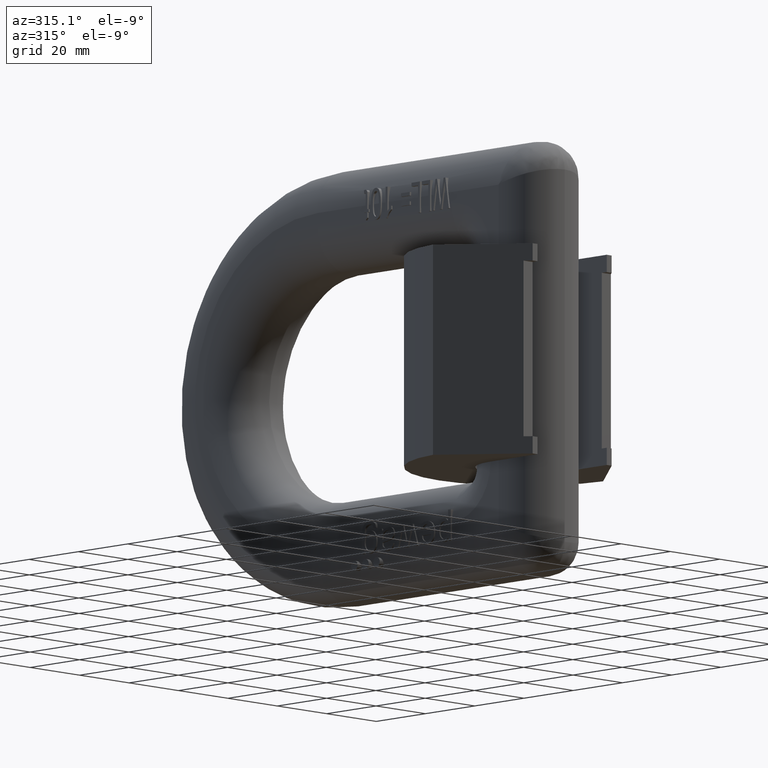
[diagram: clean part render]
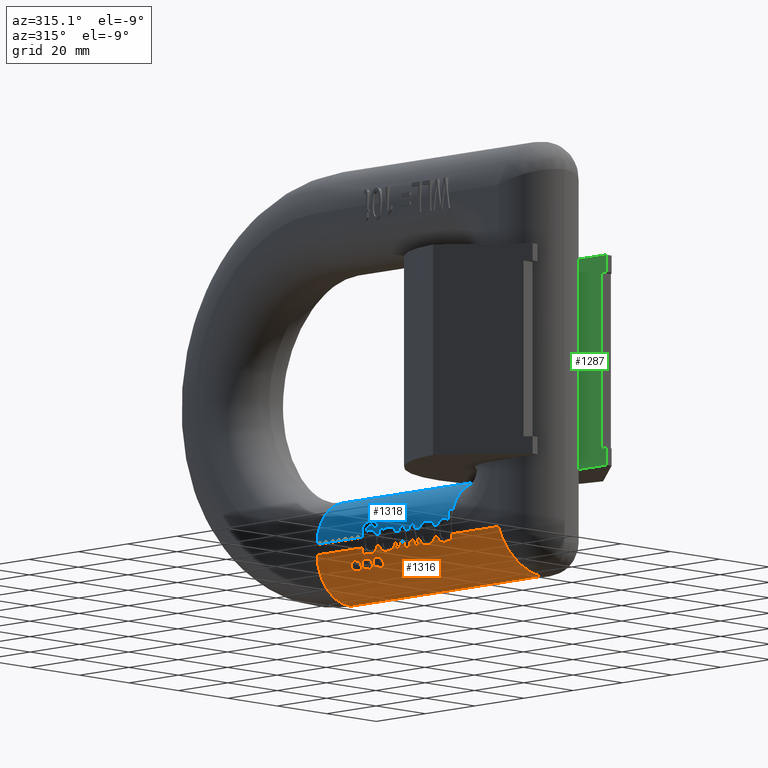
[diagram: same view with three faces highlighted in distinct colors, each labeled with its STEP entity id]
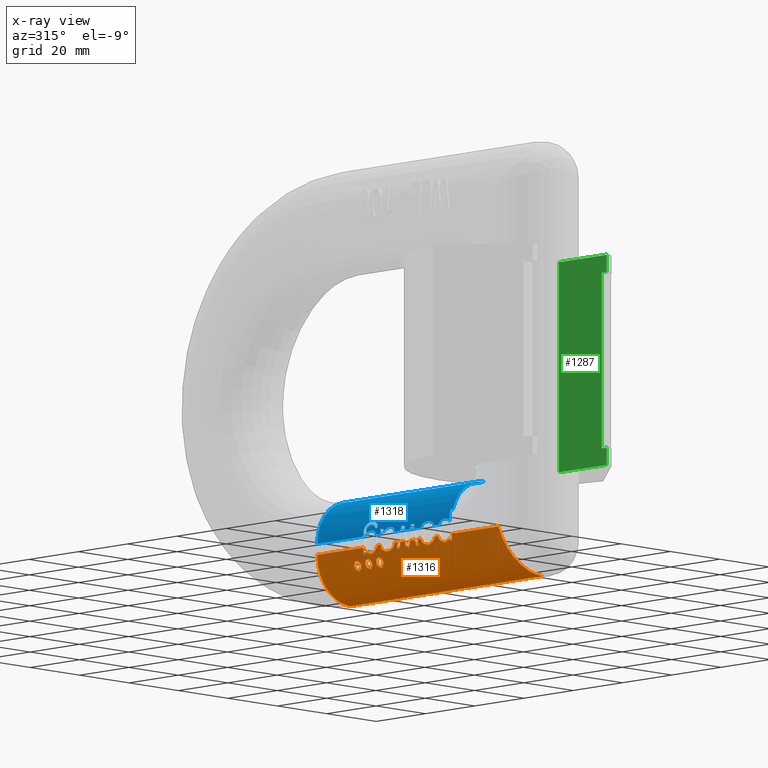
[diagram: x-ray of the same camera — body ghosted, the three highlighted faces saturated]
A machine part, auxiliary view with three faces highlighted in distinct colors.
The next image is the same camera in x-ray (body ghosted, the three faces saturated) — at least one of them is partly hidden behind the body in this view.
Their STEP definitions:

[orange] entity #1316 — the highlighted cylindrical surface (partial cylindrical patch) has radius 13.4 mm, axis along (0, 1, -0).
#189=FACE_BOUND('',#2283,.T.);
#190=FACE_BOUND('',#2284,.T.);
#191=FACE_BOUND('',#2285,.T.);
#192=FACE_BOUND('',#2286,.T.);
#243=ELLIPSE('',#8992,14.0350796678236,13.4);
#244=ELLIPSE('',#8993,13.9031873337703,13.4);
#245=ELLIPSE('',#8994,13.854260445245,13.4);
#246=ELLIPSE('',#8995,14.0610965726441,13.4);
#247=ELLIPSE('',#8996,100.810367503954,13.4);
#248=ELLIPSE('',#8999,14.1039001698112,13.4);
#317=B_SPLINE_CURVE_WITH_KNOTS('',3,(#11532,#11533,#11534,#11535,#11536,
#11537,#11538,#11539,#11540,#11541,#11542,#11543,#11544,#11545,#11546,#11547,
#11548,#11549,#11550,#11551,#11552,#11553,#11554,#11555,#11556,#11557,#11558,
#11559,#11560,#11561,#11562,#11563,#11564,#11565,#11566,#11567,#11568,#11569,
#11570,#11571,#11572,#11573,#11574,#11575,#11576,#11577,#11578,#11579,#11580,
#11581,#11582,#11583,#11584,#11585,#11586,#11587,#11588,#11589),
 .UNSPECIFIED.,.T.,.F.,(1,3,3,3,3,3,3,3,3,3,3,3,3,3,3,3,3,3,3,3,3,1),(-0.0292036165725139,
0.,0.0476978681853334,0.0952270635240324,0.145233448929908,0.200580814912016,
0.260047786898462,0.320052677696436,0.377361162453837,0.431248667078267,
0.482705602310524,0.532938277554495,0.582861336750587,0.633240313017631,
0.684934455586645,0.738946362343827,0.796051499778295,0.855850055386795,
0.915583581463539,0.970796383427486,1.,1.04769786818533),.UNSPECIFIED.);
#318=B_SPLINE_CURVE_WITH_KNOTS('',3,(#11597,#11598,#11599,#11600,#11601,
#11602,#11603,#11604,#11605,#11606),.UNSPECIFIED.,.F.,.F.,(4,3,3,4),(0.,
0.275243159320827,0.550245612807324,1.),.UNSPECIFIED.);
#319=B_SPLINE_CURVE_WITH_KNOTS('',3,(#11608,#11609,#11610,#11611,#11612,
#11613,#11614,#11615,#11616,#11617,#11618,#11619,#11620),.UNSPECIFIED.,
 .F.,.F.,(4,3,3,3,4),(0.,0.322317485495754,0.642802554380416,0.909798032915893,
1.),.UNSPECIFIED.);
#320=B_SPLINE_CURVE_WITH_KNOTS('',3,(#11622,#11623,#11624,#11625,#11626,
#11627,#11628),.UNSPECIFIED.,.F.,.F.,(4,3,4),(0.,0.521516848252663,1.),
 .UNSPECIFIED.);
#321=B_SPLINE_CURVE_WITH_KNOTS('',3,(#11632,#11633,#11634,#11635,#11636,
#11637,#11638,#11639,#11640,#11641,#11642,#11643,#11644,#11645,#11646,#11647,
#11648,#11649,#11650,#11651,#11652,#11653,#11654,#11655,#11656),
 .UNSPECIFIED.,.F.,.F.,(4,3,3,3,3,3,3,3,4),(0.,0.128807484067719,0.258123023312419,
0.383049313095489,0.531872449223691,0.684893812110349,0.822575973196024,
0.949143962446189,1.),.UNSPECIFIED.);
#322=B_SPLINE_CURVE_WITH_KNOTS('',3,(#11664,#11665,#11666,#11667),
 .UNSPECIFIED.,.F.,.F.,(4,4),(0.,1.),.UNSPECIFIED.);
#323=B_SPLINE_CURVE_WITH_KNOTS('',3,(#11679,#11680,#11681,#11682),
 .UNSPECIFIED.,.F.,.F.,(4,4),(0.,1.),.UNSPECIFIED.);
#324=B_SPLINE_CURVE_WITH_KNOTS('',3,(#11692,#11693,#11694,#11695,#11696,
#11697,#11698,#11699,#11700,#11701),.UNSPECIFIED.,.F.,.F.,(4,3,3,4),(0.,
0.288985481224049,0.577299160498725,1.),.UNSPECIFIED.);
#325=B_SPLINE_CURVE_WITH_KNOTS('',3,(#11703,#11704,#11705,#11706,#11707,
#11708,#11709,#11710,#11711,#11712),.UNSPECIFIED.,.F.,.F.,(4,3,3,4),(0.,
0.285250202288031,0.570998771076846,1.),.UNSPECIFIED.);
#326=B_SPLINE_CURVE_WITH_KNOTS('',3,(#11714,#11715,#11716,#11717,#11718,
#11719,#11720,#11721,#11722,#11723),.UNSPECIFIED.,.F.,.F.,(4,3,3,4),(0.,
0.294604659840551,0.585608039204922,1.),.UNSPECIFIED.);
#327=B_SPLINE_CURVE_WITH_KNOTS('',3,(#11725,#11726,#11727,#11728,#11729,
#11730,#11731,#11732,#11733,#11734),.UNSPECIFIED.,.F.,.F.,(4,3,3,4),(0.,
0.305786493893867,0.609747926784091,1.),.UNSPECIFIED.);
#328=B_SPLINE_CURVE_WITH_KNOTS('',3,(#11736,#11737,#11738,#11739,#11740,
#11741,#11742,#11743,#11744,#11745),.UNSPECIFIED.,.F.,.F.,(4,3,3,4),(0.,
0.277738064993001,0.555749789598673,1.),.UNSPECIFIED.);
#329=B_SPLINE_CURVE_WITH_KNOTS('',3,(#11747,#11748,#11749,#11750),
 .UNSPECIFIED.,.F.,.F.,(4,4),(0.,1.),.UNSPECIFIED.);
#330=B_SPLINE_CURVE_WITH_KNOTS('',3,(#11754,#11755,#11756,#11757),
 .UNSPECIFIED.,.F.,.F.,(4,4),(0.,1.),.UNSPECIFIED.);
#331=B_SPLINE_CURVE_WITH_KNOTS('',3,(#11759,#11760,#11761,#11762,#11763,
#11764,#11765,#11766,#11767,#11768,#11769,#11770,#11771,#11772,#11773,#11774,
#11775,#11776,#11777),.UNSPECIFIED.,.F.,.F.,(4,3,3,3,3,3,4),(0.,0.158588813182295,
0.318848548936535,0.495282039811354,0.674812629394193,0.83877153052638,
1.),.UNSPECIFIED.);
#332=B_SPLINE_CURVE_WITH_KNOTS('',3,(#11783,#11784,#11785,#11786),
 .UNSPECIFIED.,.F.,.F.,(4,4),(0.,1.),.UNSPECIFIED.);
#333=B_SPLINE_CURVE_WITH_KNOTS('',3,(#11789,#11790,#11791,#11792,#11793,
#11794,#11795,#11796,#11797,#11798,#11799,#11800,#11801,#11802,#11803,#11804,
#11805,#11806,#11807,#11808,#11809,#11810,#11811,#11812,#11813,#11814,#11815,
#11816,#11817,#11818,#11819,#11820,#11821,#11822,#11823,#11824,#11825,#11826,
#11827,#11828,#11829,#11830,#11831,#11832,#11833,#11834,#11835,#11836,#11837,
#11838,#11839,#11840,#11841,#11842,#11843,#11844,#11845,#11846),
 .UNSPECIFIED.,.T.,.F.,(1,3,3,3,3,3,3,3,3,3,3,3,3,3,3,3,3,3,3,3,3,1),(-0.0292036165725141,
0.,0.0476978681853334,0.0952270635240323,0.145233448929908,0.200580814912016,
0.260047786898462,0.320052677696437,0.377361162453837,0.431248667078268,
0.482705602310524,0.532938277554495,0.582861336750587,0.633240313017631,
0.684934455586645,0.738946362343826,0.796051499778294,0.855850055386796,
0.915583581463539,0.970796383427486,1.,1.04769786818533),.UNSPECIFIED.);
#334=B_SPLINE_CURVE_WITH_KNOTS('',3,(#11848,#11849,#11850,#11851,#11852,
#11853,#11854,#11855,#11856,#11857,#11858,#11859,#11860,#11861,#11862,#11863,
#11864,#11865,#11866,#11867,#11868,#11869,#11870,#11871,#11872,#11873,#11874,
#11875,#11876,#11877,#11878,#11879,#11880,#11881,#11882,#11883,#11884,#11885,
#11886,#11887,#11888,#11889,#11890,#11891,#11892,#11893,#11894,#11895,#11896,
#11897,#11898,#11899,#11900,#11901,#11902,#11903,#11904,#11905),
 .UNSPECIFIED.,.T.,.F.,(1,3,3,3,3,3,3,3,3,3,3,3,3,3,3,3,3,3,3,3,3,1),(-0.0292036165725141,
0.,0.0476978681853334,0.0952270635240323,0.145233448929908,0.200580814912016,
0.260047786898462,0.320052677696437,0.377361162453837,0.431248667078268,
0.482705602310524,0.532938277554494,0.582861336750587,0.633240313017631,
0.684934455586645,0.738946362343826,0.796051499778294,0.855850055386796,
0.915583581463539,0.970796383427486,1.,1.04769786818533),.UNSPECIFIED.);
#1316=ADVANCED_FACE('',(#189,#190,#191,#192),#1750,.T.);
#1750=CYLINDRICAL_SURFACE('',#9000,13.4);
#2283=EDGE_LOOP('',(#3078));
#2284=EDGE_LOOP('',(#3079,#3080,#3081,#3082,#3083,#3084,#3085,#3086,#3087,
#3088,#3089,#3090,#3091,#3092,#3093,#3094,#3095,#3096,#3097,#3098,#3099,
#3100,#3101,#3102,#3103,#3104,#3105,#3106,#3107,#3108,#3109,#3110,#3111,
#3112,#3113,#3114,#3115,#3116,#3117));
#2285=EDGE_LOOP('',(#3118));
#2286=EDGE_LOOP('',(#3119));
#2759=CIRCLE('',#8990,13.4);
#2760=CIRCLE('',#8991,13.4);
#2761=CIRCLE('',#8997,13.4);
#2762=CIRCLE('',#8998,13.4);
#3078=ORIENTED_EDGE('',*,*,#6461,.T.);
#3079=ORIENTED_EDGE('',*,*,#6462,.F.);
#3080=ORIENTED_EDGE('',*,*,#6463,.F.);
#3081=ORIENTED_EDGE('',*,*,#6464,.F.);
#3082=ORIENTED_EDGE('',*,*,#6465,.F.);
#3083=ORIENTED_EDGE('',*,*,#6466,.F.);
#3084=ORIENTED_EDGE('',*,*,#6467,.F.);
#3085=ORIENTED_EDGE('',*,*,#6468,.F.);
#3086=ORIENTED_EDGE('',*,*,#6469,.F.);
#3087=ORIENTED_EDGE('',*,*,#6470,.F.);
#3088=ORIENTED_EDGE('',*,*,#6471,.F.);
#3089=ORIENTED_EDGE('',*,*,#6472,.F.);
#3090=ORIENTED_EDGE('',*,*,#6473,.F.);
#3091=ORIENTED_EDGE('',*,*,#6474,.F.);
#3092=ORIENTED_EDGE('',*,*,#6475,.F.);
#3093=ORIENTED_EDGE('',*,*,#6476,.F.);
#3094=ORIENTED_EDGE('',*,*,#6477,.F.);
#3095=ORIENTED_EDGE('',*,*,#6478,.F.);
#3096=ORIENTED_EDGE('',*,*,#6479,.F.);
#3097=ORIENTED_EDGE('',*,*,#6480,.F.);
#3098=ORIENTED_EDGE('',*,*,#6481,.F.);
#3099=ORIENTED_EDGE('',*,*,#6482,.F.);
#3100=ORIENTED_EDGE('',*,*,#6483,.F.);
#3101=ORIENTED_EDGE('',*,*,#6484,.F.);
#3102=ORIENTED_EDGE('',*,*,#6485,.F.);
#3103=ORIENTED_EDGE('',*,*,#6486,.F.);
#3104=ORIENTED_EDGE('',*,*,#6487,.F.);
#3105=ORIENTED_EDGE('',*,*,#6488,.F.);
#3106=ORIENTED_EDGE('',*,*,#6489,.F.);
#3107=ORIENTED_EDGE('',*,*,#6490,.F.);
#3108=ORIENTED_EDGE('',*,*,#6491,.F.);
#3109=ORIENTED_EDGE('',*,*,#6492,.F.);
#3110=ORIENTED_EDGE('',*,*,#6493,.F.);
#3111=ORIENTED_EDGE('',*,*,#6494,.F.);
#3112=ORIENTED_EDGE('',*,*,#6495,.F.);
#3113=ORIENTED_EDGE('',*,*,#6455,.F.);
#3114=ORIENTED_EDGE('',*,*,#6496,.F.);
#3115=ORIENTED_EDGE('',*,*,#6353,.F.);
#3116=ORIENTED_EDGE('',*,*,#6497,.F.);
#3117=ORIENTED_EDGE('',*,*,#6364,.F.);
#3118=ORIENTED_EDGE('',*,*,#6498,.T.);
#3119=ORIENTED_EDGE('',*,*,#6499,.T.);
#5467=VERTEX_POINT('',#11179);
#5469=VERTEX_POINT('',#11185);
#5476=VERTEX_POINT('',#11206);
#5477=VERTEX_POINT('',#11208);
#5555=VERTEX_POINT('',#11506);
#5556=VERTEX_POINT('',#11508);
#5560=VERTEX_POINT('',#11590);
#5561=VERTEX_POINT('',#11592);
#5562=VERTEX_POINT('',#11594);
#5563=VERTEX_POINT('',#11596);
#5564=VERTEX_POINT('',#11607);
#5565=VERTEX_POINT('',#11621);
#5566=VERTEX_POINT('',#11629);
#5567=VERTEX_POINT('',#11631);
#5568=VERTEX_POINT('',#11657);
#5569=VERTEX_POINT('',#11659);
#5570=VERTEX_POINT('',#11661);
#5571=VERTEX_POINT('',#11663);
#5572=VERTEX_POINT('',#11668);
#5573=VERTEX_POINT('',#11670);
#5574=VERTEX_POINT('',#11672);
#5575=VERTEX_POINT('',#11674);
#5576=VERTEX_POINT('',#11676);
#5577=VERTEX_POINT('',#11678);
#5578=VERTEX_POINT('',#11683);
#5579=VERTEX_POINT('',#11685);
#5580=VERTEX_POINT('',#11687);
#5581=VERTEX_POINT('',#11689);
#5582=VERTEX_POINT('',#11691);
#5583=VERTEX_POINT('',#11702);
#5584=VERTEX_POINT('',#11713);
#5585=VERTEX_POINT('',#11724);
#5586=VERTEX_POINT('',#11735);
#5587=VERTEX_POINT('',#11746);
#5588=VERTEX_POINT('',#11751);
#5589=VERTEX_POINT('',#11753);
#5590=VERTEX_POINT('',#11758);
#5591=VERTEX_POINT('',#11778);
#5592=VERTEX_POINT('',#11780);
#5593=VERTEX_POINT('',#11782);
#5594=VERTEX_POINT('',#11847);
#5595=VERTEX_POINT('',#11906);
#6353=EDGE_CURVE('',#5469,#5467,#7639,.T.);
#6364=EDGE_CURVE('',#5476,#5477,#7644,.T.);
#6455=EDGE_CURVE('',#5555,#5556,#7696,.T.);
#6461=EDGE_CURVE('',#5560,#5560,#317,.T.);
#6462=EDGE_CURVE('',#5561,#5476,#2759,.T.);
#6463=EDGE_CURVE('',#5562,#5561,#7698,.T.);
#6464=EDGE_CURVE('',#5563,#5562,#2760,.T.);
#6465=EDGE_CURVE('',#5564,#5563,#318,.T.);
#6466=EDGE_CURVE('',#5565,#5564,#319,.T.);
#6467=EDGE_CURVE('',#5566,#5565,#320,.T.);
#6468=EDGE_CURVE('',#5567,#5566,#7699,.T.);
#6469=EDGE_CURVE('',#5568,#5567,#321,.T.);
#6470=EDGE_CURVE('',#5569,#5568,#7700,.T.);
#6471=EDGE_CURVE('',#5570,#5569,#243,.T.);
#6472=EDGE_CURVE('',#5571,#5570,#7701,.T.);
#6473=EDGE_CURVE('',#5572,#5571,#322,.T.);
#6474=EDGE_CURVE('',#5573,#5572,#7702,.T.);
#6475=EDGE_CURVE('',#5574,#5573,#244,.T.);
#6476=EDGE_CURVE('',#5575,#5574,#7703,.T.);
#6477=EDGE_CURVE('',#5576,#5575,#245,.T.);
#6478=EDGE_CURVE('',#5577,#5576,#7704,.T.);
#6479=EDGE_CURVE('',#5578,#5577,#323,.T.);
#6480=EDGE_CURVE('',#5579,#5578,#7705,.T.);
#6481=EDGE_CURVE('',#5580,#5579,#246,.T.);
#6482=EDGE_CURVE('',#5581,#5580,#7706,.T.);
#6483=EDGE_CURVE('',#5582,#5581,#247,.T.);
#6484=EDGE_CURVE('',#5583,#5582,#324,.T.);
#6485=EDGE_CURVE('',#5584,#5583,#325,.T.);
#6486=EDGE_CURVE('',#5585,#5584,#326,.T.);
#6487=EDGE_CURVE('',#5586,#5585,#327,.T.);
#6488=EDGE_CURVE('',#5587,#5586,#328,.T.);
#6489=EDGE_CURVE('',#5588,#5587,#329,.T.);
#6490=EDGE_CURVE('',#5589,#5588,#7707,.T.);
#6491=EDGE_CURVE('',#5590,#5589,#330,.T.);
#6492=EDGE_CURVE('',#5591,#5590,#331,.T.);
#6493=EDGE_CURVE('',#5592,#5591,#2761,.T.);
#6494=EDGE_CURVE('',#5593,#5592,#7708,.T.);
#6495=EDGE_CURVE('',#5556,#5593,#332,.T.);
#6496=EDGE_CURVE('',#5467,#5555,#2762,.T.);
#6497=EDGE_CURVE('',#5477,#5469,#248,.T.);
#6498=EDGE_CURVE('',#5594,#5594,#333,.T.);
#6499=EDGE_CURVE('',#5595,#5595,#334,.T.);
#7639=LINE('',#11186,#8231);
#7644=LINE('',#11207,#8236);
#7696=LINE('',#11507,#8288);
#7698=LINE('',#11593,#8290);
#7699=LINE('',#11630,#8291);
#7700=LINE('',#11658,#8292);
#7701=LINE('',#11662,#8293);
#7702=LINE('',#11669,#8294);
#7703=LINE('',#11673,#8295);
#7704=LINE('',#11677,#8296);
#7705=LINE('',#11684,#8297);
#7706=LINE('',#11688,#8298);
#7707=LINE('',#11752,#8299);
#7708=LINE('',#11781,#8300);
#8231=VECTOR('',#9512,1.);
#8236=VECTOR('',#9535,1.);
#8288=VECTOR('',#9647,1.);
#8290=VECTOR('',#9657,1.);
#8291=VECTOR('',#9660,1.);
#8292=VECTOR('',#9661,1.);
#8293=VECTOR('',#9664,1.);
#8294=VECTOR('',#9665,1.);
#8295=VECTOR('',#9668,1.);
#8296=VECTOR('',#9671,1.);
#8297=VECTOR('',#9672,1.);
#8298=VECTOR('',#9675,1.);
#8299=VECTOR('',#9678,1.);
#8300=VECTOR('',#9681,1.);
#8990=AXIS2_PLACEMENT_3D('',#11591,#9655,#9656);
#8991=AXIS2_PLACEMENT_3D('',#11595,#9658,#9659);
#8992=AXIS2_PLACEMENT_3D('',#11660,#9662,#9663);
#8993=AXIS2_PLACEMENT_3D('',#11671,#9666,#9667);
#8994=AXIS2_PLACEMENT_3D('',#11675,#9669,#9670);
#8995=AXIS2_PLACEMENT_3D('',#11686,#9673,#9674);
#8996=AXIS2_PLACEMENT_3D('',#11690,#9676,#9677);
#8997=AXIS2_PLACEMENT_3D('',#11779,#9679,#9680);
#8998=AXIS2_PLACEMENT_3D('',#11787,#9682,#9683);
#8999=AXIS2_PLACEMENT_3D('',#11788,#9684,#9685);
#9000=AXIS2_PLACEMENT_3D('',#11907,#9686,#9687);
#9512=DIRECTION('',(0.,1.,-1.77920356510442E-16));
#9535=DIRECTION('',(0.,-1.,1.77920356510442E-16));
#9647=DIRECTION('',(0.,-1.,1.77920356510442E-16));
#9655=DIRECTION('',(0.,1.,0.));
#9656=DIRECTION('',(0.,0.,-1.));
#9657=DIRECTION('',(0.,-1.,1.77920356510442E-16));
#9658=DIRECTION('',(0.,-1.,0.));
#9659=DIRECTION('',(0.,0.,1.));
#9660=DIRECTION('',(0.,-1.,1.77920356510442E-16));
#9661=DIRECTION('',(0.,-1.,1.77920356510442E-16));
#9662=DIRECTION('',(0.,0.954750547709428,-0.297407786798778));
#9663=DIRECTION('',(0.,0.297407786798778,0.954750547709428));
#9664=DIRECTION('',(0.,-1.,1.77920356510442E-16));
#9665=DIRECTION('',(0.,-1.,1.77920356510442E-16));
#9666=DIRECTION('',(0.,0.96380777143468,0.266598161513008));
#9667=DIRECTION('',(0.,0.266598161513008,-0.96380777143468));
#9668=DIRECTION('',(0.,-1.,1.77920356510442E-16));
#9669=DIRECTION('',(0.,-0.967211498077407,0.253972277988876));
#9670=DIRECTION('',(0.,0.253972277988876,0.967211498077407));
#9671=DIRECTION('',(0.,-1.,1.77920356510442E-16));
#9672=DIRECTION('',(0.,-1.,1.77920356510442E-16));
#9673=DIRECTION('',(0.,-0.952983996004249,-0.303020631904454));
#9674=DIRECTION('',(0.,0.303020631904453,-0.952983996004249));
#9675=DIRECTION('',(0.,-1.,1.77920356510442E-16));
#9676=DIRECTION('',(0.,0.132922836527448,-0.991126389281154));
#9677=DIRECTION('',(0.,0.991126389281154,0.132922836527448));
#9678=DIRECTION('',(0.,-1.,1.77920356510442E-16));
#9679=DIRECTION('',(0.,1.,0.));
#9680=DIRECTION('',(0.,0.,-1.));
#9681=DIRECTION('',(0.,-1.,1.77920356510442E-16));
#9682=DIRECTION('',(0.,1.,0.));
#9683=DIRECTION('',(0.,0.,1.));
#9684=DIRECTION('',(0.,-0.950091807135884,0.311970444134171));
#9685=DIRECTION('',(0.,-0.31197044413417,-0.950091807135883));
#9686=DIRECTION('',(0.,1.,-1.77920356510442E-16));
#9687=DIRECTION('',(0.,1.29456975819165E-16,1.));
#11179=CARTESIAN_POINT('',(-0.0999999999999994,90.,-63.));
#11185=CARTESIAN_POINT('',(-0.0999999999999994,12.,-63.));
#11186=CARTESIAN_POINT('',(-0.0999999999999994,90.,-63.));
#11206=CARTESIAN_POINT('',(-13.5,35.25,-49.6));
#11207=CARTESIAN_POINT('',(-13.5,12.,-49.6));
#11208=CARTESIAN_POINT('',(-13.5,16.4,-49.6));
#11506=CARTESIAN_POINT('',(-13.5,90.,-49.6));
#11507=CARTESIAN_POINT('',(-13.5,12.,-49.6));
#11508=CARTESIAN_POINT('',(-13.5,71.25,-49.6));
#11532=CARTESIAN_POINT('',(-11.979393923934,65.4,-55.8));
#11533=CARTESIAN_POINT('',(-11.979393923934,65.5393239146673,-55.8));
#11534=CARTESIAN_POINT('',(-11.9911117625802,65.680567997658,-55.7776767247378));
#11535=CARTESIAN_POINT('',(-12.0127281100463,65.8116499859612,-55.7357076996962));
#11536=CARTESIAN_POINT('',(-12.0343013023678,65.9424702805538,-55.6938224621378));
#11537=CARTESIAN_POINT('',(-12.0661435549689,66.066693837449,-55.6314817151716));
#11538=CARTESIAN_POINT('',(-12.1042750255963,66.1761034652571,-55.5546100720236));
#11539=CARTESIAN_POINT('',(-12.1444104231762,66.2912629080713,-55.4736985857998));
#11540=CARTESIAN_POINT('',(-12.1923876814724,66.3929749200083,-55.3748344039664));
#11541=CARTESIAN_POINT('',(-12.2433911076888,66.4758421858738,-55.2655143107845));
#11542=CARTESIAN_POINT('',(-12.2997690122653,66.5674415774058,-55.1446746292395));
#11543=CARTESIAN_POINT('',(-12.361208226671,66.6383691539247,-55.0080326468717));
#11544=CARTESIAN_POINT('',(-12.4221389161684,66.6844870232891,-54.865443241613));
#11545=CARTESIAN_POINT('',(-12.4874898287599,66.7339505181978,-54.7125096733833));
#11546=CARTESIAN_POINT('',(-12.5540120043497,66.7561231942098,-54.5484980640941));
#11547=CARTESIAN_POINT('',(-12.6159318629767,66.7485100104856,-54.3865906030623));
#11548=CARTESIAN_POINT('',(-12.6783369571014,66.7408371659826,-54.2234143528379));
#11549=CARTESIAN_POINT('',(-12.7378822879811,66.7024572133671,-54.0575734998205));
#11550=CARTESIAN_POINT('',(-12.7897128413018,66.6350070407621,-53.9047866387662));
#11551=CARTESIAN_POINT('',(-12.839222233462,66.570577532821,-53.7588421304363));
#11552=CARTESIAN_POINT('',(-12.8832050381237,66.4775379954568,-53.6205085792161));
#11553=CARTESIAN_POINT('',(-12.9186732225997,66.36316204232,-53.504051333193));
#11554=CARTESIAN_POINT('',(-12.9520574510006,66.255506322144,-53.3944366078379));
#11555=CARTESIAN_POINT('',(-12.9789491207995,66.1257546538286,-53.3010279581127));
#11556=CARTESIAN_POINT('',(-12.9980037321706,65.9851088364994,-53.2333868119035));
#11557=CARTESIAN_POINT('',(-13.0162159552949,65.8506808517543,-53.1687360235373));
#11558=CARTESIAN_POINT('',(-13.0278468588246,65.7024705217189,-53.1257747628388));
#11559=CARTESIAN_POINT('',(-13.0324725854349,65.5532384571422,-53.1087252424456));
#11560=CARTESIAN_POINT('',(-13.0369909559363,65.4074698427702,-53.0920714155989));
#11561=CARTESIAN_POINT('',(-13.0349702050408,65.2566733103809,-53.0996550276402));
#11562=CARTESIAN_POINT('',(-13.0264748991532,65.1134715758389,-53.1307572391149));
#11563=CARTESIAN_POINT('',(-13.0180289379175,64.9711016229695,-53.161678794611));
#11564=CARTESIAN_POINT('',(-13.0029346028271,64.8323647349378,-53.2166558725295));
#11565=CARTESIAN_POINT('',(-12.9817414570647,64.70836628656,-53.2906282708151));
#11566=CARTESIAN_POINT('',(-12.9603497970452,64.5832063560624,-53.3652935617868));
#11567=CARTESIAN_POINT('',(-12.9321387023631,64.4697235414779,-53.4612403746525));
#11568=CARTESIAN_POINT('',(-12.8984099164568,64.3762537096352,-53.5699752657088));
#11569=CARTESIAN_POINT('',(-12.8637971185729,64.2803340875413,-53.6815600353925));
#11570=CARTESIAN_POINT('',(-12.8224446398099,64.2029491366027,-53.8094327470957));
#11571=CARTESIAN_POINT('',(-12.7766996351458,64.1488370754988,-53.9429582498909));
#11572=CARTESIAN_POINT('',(-12.7289117088202,64.0923084291834,-54.082446854975));
#11573=CARTESIAN_POINT('',(-12.6750936775749,64.0596336374966,-54.2316190441823));
#11574=CARTESIAN_POINT('',(-12.6188440810384,64.0518699729387,-54.3789688087127));
#11575=CARTESIAN_POINT('',(-12.5594117993953,64.0436670287934,-54.5346558401732));
#11576=CARTESIAN_POINT('',(-12.4957137430546,64.062970479442,-54.6923591908658));
#11577=CARTESIAN_POINT('',(-12.4328486500514,64.1076538948318,-54.8403095495329));
#11578=CARTESIAN_POINT('',(-12.3671042653337,64.1543838607245,-54.9950362004396));
#11579=CARTESIAN_POINT('',(-12.3004405802159,64.2302084777053,-55.143441402888));
#11580=CARTESIAN_POINT('',(-12.2398339348439,64.3299752642788,-55.2731324710792));
#11581=CARTESIAN_POINT('',(-12.1793915709179,64.4294716212343,-55.4024719963646));
#11582=CARTESIAN_POINT('',(-12.1231910257796,64.5561386112171,-55.5171290126286));
#11583=CARTESIAN_POINT('',(-12.0794286660055,64.7001640351067,-55.6044390942106));
#11584=CARTESIAN_POINT('',(-12.0389798982192,64.8332841629133,-55.6851382437435));
#11585=CARTESIAN_POINT('',(-12.0080817946419,64.9857903442658,-55.7448163115713));
#11586=CARTESIAN_POINT('',(-11.9922544650003,65.1429205232368,-55.7752962471188));
#11587=CARTESIAN_POINT('',(-11.9837725454822,65.2271271179108,-55.7916305477296));
#11588=CARTESIAN_POINT('',(-11.979393923934,65.31380543566,-55.8));
#11589=CARTESIAN_POINT('',(-11.979393923934,65.4,-55.8));
#11590=CARTESIAN_POINT('',(-11.979393923934,65.4,-55.8));
#11591=CARTESIAN_POINT('',(-0.0999999999999994,35.25,-49.6));
#11592=CARTESIAN_POINT('',(-13.361685533372,35.25,-51.5203376822717));
#11593=CARTESIAN_POINT('',(-13.361685533372,12.,-51.5203376822717));
#11594=CARTESIAN_POINT('',(-13.361685533372,36.2737521962647,-51.5203376822717));
#11595=CARTESIAN_POINT('',(-0.0999999999999994,36.2737521962647,-49.6));
#11596=CARTESIAN_POINT('',(-13.4569658827027,36.2737521962647,-50.6730621642364));
#11597=CARTESIAN_POINT('',(-13.3759601890831,37.093691026225,-51.4190330007674));
#11598=CARTESIAN_POINT('',(-13.3826787779837,37.0036063633052,-51.3699983110542));
#11599=CARTESIAN_POINT('',(-13.3900595160017,36.9170362376642,-51.3141005891133));
#11600=CARTESIAN_POINT('',(-13.3976853934874,36.8349264437372,-51.2527441350166));
#11601=CARTESIAN_POINT('',(-13.405307324584,36.7528591416015,-51.1914194328648));
#11602=CARTESIAN_POINT('',(-13.4132037821624,36.67485910431,-51.1243842976375));
#11603=CARTESIAN_POINT('',(-13.4209800986074,36.6012967311829,-51.0530964223015));
#11604=CARTESIAN_POINT('',(-13.4336715968372,36.4812377373224,-50.9367495696448));
#11605=CARTESIAN_POINT('',(-13.4460979866315,36.3722076355698,-50.8083405496622));
#11606=CARTESIAN_POINT('',(-13.4569658827027,36.2737521962647,-50.6730621642364));
#11607=CARTESIAN_POINT('',(-13.3759601890831,37.093691026225,-51.4190330007674));
#11608=CARTESIAN_POINT('',(-13.3996148848618,39.6987538231275,-51.2371450498849));
#11609=CARTESIAN_POINT('',(-13.3799300290888,39.455997384836,-51.3970581870029));
#11610=CARTESIAN_POINT('',(-13.3624271710039,39.1814852600822,-51.5164987850115));
#11611=CARTESIAN_POINT('',(-13.3520079977216,38.8987338955072,-51.5860221620927));
#11612=CARTESIAN_POINT('',(-13.3416189125128,38.6167990490602,-51.6553447723349));
#11613=CARTESIAN_POINT('',(-13.3378096919253,38.320801962302,-51.6786134016241));
#11614=CARTESIAN_POINT('',(-13.3401907307792,38.0306955990822,-51.6633345372451));
#11615=CARTESIAN_POINT('',(-13.3421740571863,37.7890466188057,-51.6506077498834));
#11616=CARTESIAN_POINT('',(-13.3489476991598,37.5447929435229,-51.6082040508464));
#11617=CARTESIAN_POINT('',(-13.3613714896016,37.3188250487683,-51.5225051923937));
#11618=CARTESIAN_POINT('',(-13.3656190404548,37.2415692282803,-51.4932057397796));
#11619=CARTESIAN_POINT('',(-13.3705201170763,37.1660718957233,-51.4587366121679));
#11620=CARTESIAN_POINT('',(-13.3759601890831,37.093691026225,-51.4190330007674));
#11621=CARTESIAN_POINT('',(-13.3996148848618,39.6987538231275,-51.2371450498849));
#11622=CARTESIAN_POINT('',(-13.5,40.8295940551843,-49.6));
#11623=CARTESIAN_POINT('',(-13.5,40.7292138647838,-49.9379524482581));
#11624=CARTESIAN_POINT('',(-13.4863821988653,40.5865438146294,-50.2701473524575));
#11625=CARTESIAN_POINT('',(-13.4655827384689,40.3866383574646,-50.5597906340151));
#11626=CARTESIAN_POINT('',(-13.4465529351653,40.2037412314503,-50.8247905220498));
#11627=CARTESIAN_POINT('',(-13.4214890369674,39.967050838901,-51.0594468068627));
#11628=CARTESIAN_POINT('',(-13.3996148848618,39.6987538231275,-51.2371450498849));
#11629=CARTESIAN_POINT('',(-13.5,40.8295940551843,-49.6));
#11630=CARTESIAN_POINT('',(-13.5,12.,-49.6));
#11631=CARTESIAN_POINT('',(-13.5,42.1843157832024,-49.6));
#11632=CARTESIAN_POINT('',(-13.5,47.9294457526745,-49.6));
#11633=CARTESIAN_POINT('',(-13.5,47.8351937736706,-49.9125977364534));
#11634=CARTESIAN_POINT('',(-13.4884606995336,47.6938633897462,-50.216505706171));
#11635=CARTESIAN_POINT('',(-13.4709210715,47.5050735815365,-50.4823092993494));
#11636=CARTESIAN_POINT('',(-13.4533285594192,47.3157145497899,-50.7489143217091));
#11637=CARTESIAN_POINT('',(-13.4295927317056,47.0752174633177,-50.9844793237506));
#11638=CARTESIAN_POINT('',(-13.4077307119994,46.8061093320749,-51.1698099556659));
#11639=CARTESIAN_POINT('',(-13.3866169575072,46.5462118893278,-51.3487973280468));
#11640=CARTESIAN_POINT('',(-13.3673498070748,46.2497877172127,-51.4825561809514));
#11641=CARTESIAN_POINT('',(-13.3554598103879,45.9441076996759,-51.5628512972694));
#11642=CARTESIAN_POINT('',(-13.3413008198997,45.5800941028094,-51.658469304417));
#11643=CARTESIAN_POINT('',(-13.3369029323702,45.1940793504579,-51.6844886145386));
#11644=CARTESIAN_POINT('',(-13.3409440905039,44.8183704819508,-51.6584944965072));
#11645=CARTESIAN_POINT('',(-13.3450826682657,44.4336044528378,-51.6318737419454));
#11646=CARTESIAN_POINT('',(-13.3597040764273,44.0448940580055,-51.5411276185775));
#11647=CARTESIAN_POINT('',(-13.3817750413904,43.6969830585657,-51.3760776305947));
#11648=CARTESIAN_POINT('',(-13.4016725494477,43.3833328884832,-51.2272810795046));
#11649=CARTESIAN_POINT('',(-13.4275838159177,43.0952607143984,-51.0139310283345));
#11650=CARTESIAN_POINT('',(-13.4494781863198,42.85605070115,-50.7625111410098));
#11651=CARTESIAN_POINT('',(-13.4696322657557,42.6358544808279,-50.5310755578964));
#11652=CARTESIAN_POINT('',(-13.4870839165195,42.4548639336866,-50.2565936231861));
#11653=CARTESIAN_POINT('',(-13.495029910487,42.3232431999507,-49.9649297153679));
#11654=CARTESIAN_POINT('',(-13.4982613366384,42.2697165193628,-49.8463176974153));
#11655=CARTESIAN_POINT('',(-13.5,42.2235375680295,-49.7241209492692));
#11656=CARTESIAN_POINT('',(-13.5,42.1843157832024,-49.6));
#11657=CARTESIAN_POINT('',(-13.5,47.9294457526745,-49.6));
#11658=CARTESIAN_POINT('',(-13.5,12.,-49.6));
#11659=CARTESIAN_POINT('',(-13.5,49.2717611919885,-49.6));
#11660=CARTESIAN_POINT('',(-0.0999999999999994,49.2717611919885,-49.6));
#11661=CARTESIAN_POINT('',(-13.361685533372,48.6735699876358,-51.5203376822717));
#11662=CARTESIAN_POINT('',(-13.361685533372,12.,-51.5203376822717));
#11663=CARTESIAN_POINT('',(-13.361685533372,49.8355404438082,-51.5203376822717));
#11664=CARTESIAN_POINT('',(-13.5,50.3745208277239,-49.6));
#11665=CARTESIAN_POINT('',(-13.5,50.1944292308615,-50.2416498448473));
#11666=CARTESIAN_POINT('',(-13.4537086208179,50.0139069382612,-50.8848342191132));
#11667=CARTESIAN_POINT('',(-13.361685533372,49.8355404438082,-51.5203376822717));
#11668=CARTESIAN_POINT('',(-13.5,50.3745208277239,-49.6));
#11669=CARTESIAN_POINT('',(-13.5,12.,-49.6));
#11670=CARTESIAN_POINT('',(-13.5,52.1530590079891,-49.6));
#11671=CARTESIAN_POINT('',(-0.0999999999999994,52.1530590079891,-49.6));
#11672=CARTESIAN_POINT('',(-13.361685533372,52.6842422073274,-51.5203376822717));
#11673=CARTESIAN_POINT('',(-13.361685533372,12.,-51.5203376822717));
#11674=CARTESIAN_POINT('',(-13.361685533372,53.8391846163858,-51.5203376822717));
#11675=CARTESIAN_POINT('',(-0.0999999999999994,54.3434306232249,-49.6));
#11676=CARTESIAN_POINT('',(-13.5,54.3434306232249,-49.6));
#11677=CARTESIAN_POINT('',(-13.5,12.,-49.6));
#11678=CARTESIAN_POINT('',(-13.5,56.1018983412072,-49.6));
#11679=CARTESIAN_POINT('',(-13.361685533372,56.680858332791,-51.5203376822717));
#11680=CARTESIAN_POINT('',(-13.4537166378595,56.4892627971908,-50.8847788541186));
#11681=CARTESIAN_POINT('',(-13.5,56.2953426811753,-50.2416329829682));
#11682=CARTESIAN_POINT('',(-13.5,56.1018983412072,-49.6));
#11683=CARTESIAN_POINT('',(-13.361685533372,56.680858332791,-51.5203376822717));
#11684=CARTESIAN_POINT('',(-13.361685533372,12.,-51.5203376822717));
#11685=CARTESIAN_POINT('',(-13.361685533372,57.7748910001952,-51.5203376822717));
#11686=CARTESIAN_POINT('',(-0.0999999999999994,57.1642806012885,-49.6));
#11687=CARTESIAN_POINT('',(-13.5,57.1642806012885,-49.6));
#11688=CARTESIAN_POINT('',(-13.5,12.,-49.6));
#11689=CARTESIAN_POINT('',(-13.5,58.9790761046395,-49.6));
#11690=CARTESIAN_POINT('',(-0.0999999999999994,58.9790761046397,-49.6));
#11691=CARTESIAN_POINT('',(-13.4998656022313,58.53157740613,-49.6600153491941));
#11692=CARTESIAN_POINT('',(-13.4480345353533,59.0258833864775,-50.7789716039908));
#11693=CARTESIAN_POINT('',(-13.4561726139192,58.9511880669202,-50.6868342247851));
#11694=CARTESIAN_POINT('',(-13.4639942205784,58.8851756092072,-50.5871604528225));
#11695=CARTESIAN_POINT('',(-13.4708535120246,58.8276636238138,-50.4833325308054));
#11696=CARTESIAN_POINT('',(-13.4777031292923,58.7702327519318,-50.379651045175));
#11697=CARTESIAN_POINT('',(-13.4836386812176,58.7208386543157,-50.2712007565972));
#11698=CARTESIAN_POINT('',(-13.4882759942997,58.6784090924005,-50.1604158281664));
#11699=CARTESIAN_POINT('',(-13.4950675831308,58.6162687680976,-49.9981654755864));
#11700=CARTESIAN_POINT('',(-13.4991046739793,58.5685594392174,-49.829910825039));
#11701=CARTESIAN_POINT('',(-13.4998656022313,58.53157740613,-49.6600153491941));
#11702=CARTESIAN_POINT('',(-13.4480345353533,59.0258833864775,-50.7789716039908));
#11703=CARTESIAN_POINT('',(-13.3734234477621,60.0191807119151,-51.4374520337682));
#11704=CARTESIAN_POINT('',(-13.3787646944412,59.9107772702533,-51.3988678271566));
#11705=CARTESIAN_POINT('',(-13.3847218202715,59.8041483364914,-51.354651860171));
#11706=CARTESIAN_POINT('',(-13.391250826551,59.7010387652549,-51.3037169558668));
#11707=CARTESIAN_POINT('',(-13.3977864635177,59.5978244786468,-51.252730323412));
#11708=CARTESIAN_POINT('',(-13.4049315988766,59.4976670439381,-51.1947354611732));
#11709=CARTESIAN_POINT('',(-13.4124881261281,59.4032769051987,-51.128940774425));
#11710=CARTESIAN_POINT('',(-13.4237581747794,59.2625004055712,-51.0308124548972));
#11711=CARTESIAN_POINT('',(-13.4361783972643,59.1327258381558,-50.9132039638982));
#11712=CARTESIAN_POINT('',(-13.4480345353533,59.0258833864775,-50.7789716039908));
#11713=CARTESIAN_POINT('',(-13.3734234477621,60.0191807119151,-51.4374520337682));
#11714=CARTESIAN_POINT('',(-13.3689214604544,62.9053653933754,-51.4696853415196));
#11715=CARTESIAN_POINT('',(-13.3549411764013,62.6361571224547,-51.568901657215));
#11716=CARTESIAN_POINT('',(-13.3470744008149,62.3480421791042,-51.6188391491907));
#11717=CARTESIAN_POINT('',(-13.343061035202,62.0619989520492,-51.6448311465534));
#11718=CARTESIAN_POINT('',(-13.3390813315135,61.7783548997571,-51.6706051372016));
#11719=CARTESIAN_POINT('',(-13.3384220478305,61.4920190325862,-51.6747105073982));
#11720=CARTESIAN_POINT('',(-13.3408128082577,61.207603704162,-51.6593387717129));
#11721=CARTESIAN_POINT('',(-13.344196437766,60.8050723225335,-51.6375832424391));
#11722=CARTESIAN_POINT('',(-13.3548891762467,60.398978925375,-51.5713402820594));
#11723=CARTESIAN_POINT('',(-13.3734234477621,60.0191807119151,-51.4374520337682));
#11724=CARTESIAN_POINT('',(-13.3689214604544,62.9053653933754,-51.4696853415196));
#11725=CARTESIAN_POINT('',(-13.4290636025393,63.6854786230234,-50.976976208749));
#11726=CARTESIAN_POINT('',(-13.4215719310978,63.6245602362232,-51.0494952286853));
#11727=CARTESIAN_POINT('',(-13.4143030957999,63.5536450178485,-51.1141421348752));
#11728=CARTESIAN_POINT('',(-13.4075744741233,63.477929419638,-51.1711338630627));
#11729=CARTESIAN_POINT('',(-13.4008709483242,63.402496219439,-51.2279130280387));
#11730=CARTESIAN_POINT('',(-13.394623461271,63.3216076431995,-51.2777928456428));
#11731=CARTESIAN_POINT('',(-13.388873287522,63.2381979995243,-51.3221633918373));
#11732=CARTESIAN_POINT('',(-13.3814899010987,63.1310976478541,-51.3791364334648));
#11733=CARTESIAN_POINT('',(-13.3748708998026,63.0191757551598,-51.4274629195473));
#11734=CARTESIAN_POINT('',(-13.3689214604544,62.9053653933754,-51.4696853415196));
#11735=CARTESIAN_POINT('',(-13.4290636025393,63.6854786230234,-50.976976208749));
#11736=CARTESIAN_POINT('',(-13.4854585798644,64.0345382963493,-50.2240982348427));
#11737=CARTESIAN_POINT('',(-13.4819146433013,64.0181328930881,-50.3001074484996));
#11738=CARTESIAN_POINT('',(-13.4777501849985,63.9979031545656,-50.3754050989718));
#11739=CARTESIAN_POINT('',(-13.4730709396189,63.9732857305558,-50.4491016687772));
#11740=CARTESIAN_POINT('',(-13.4683889662775,63.9486539547887,-50.5228412030809));
#11741=CARTESIAN_POINT('',(-13.463173419008,63.91952039388,-50.5952427906555));
#11742=CARTESIAN_POINT('',(-13.4576025964229,63.8855479736208,-50.665106978682));
#11743=CARTESIAN_POINT('',(-13.4487423638536,63.8315158195106,-50.776223953729));
#11744=CARTESIAN_POINT('',(-13.438877912187,63.7643662017125,-50.8819741624697));
#11745=CARTESIAN_POINT('',(-13.4290636025393,63.6854786230234,-50.976976208749));
#11746=CARTESIAN_POINT('',(-13.4854585798644,64.0345382963493,-50.2240982348427));
#11747=CARTESIAN_POINT('',(-13.5,64.0858929768334,-49.6));
#11748=CARTESIAN_POINT('',(-13.5,64.0801538032385,-49.8087132322427));
#11749=CARTESIAN_POINT('',(-13.4949971920287,64.075155328988,-50.0195171434281));
#11750=CARTESIAN_POINT('',(-13.4854585798644,64.0345382963493,-50.2240982348427));
#11751=CARTESIAN_POINT('',(-13.5,64.0858929768334,-49.6));
#11752=CARTESIAN_POINT('',(-13.5,12.,-49.6));
#11753=CARTESIAN_POINT('',(-13.5,65.5916892312412,-49.6));
#11754=CARTESIAN_POINT('',(-13.4934417788831,65.7470391097807,-50.0191864927091));
#11755=CARTESIAN_POINT('',(-13.4977165525864,65.6875653756555,-49.8826030538126));
#11756=CARTESIAN_POINT('',(-13.5,65.6356287179759,-49.7424070083503));
#11757=CARTESIAN_POINT('',(-13.5,65.5916892312412,-49.6));
#11758=CARTESIAN_POINT('',(-13.4934417788831,65.7470391097807,-50.0191864927091));
#11759=CARTESIAN_POINT('',(-13.4520216881764,70.2121917095074,-50.7329240214889));
#11760=CARTESIAN_POINT('',(-13.4331709462114,70.0311820689379,-50.9550885363026));
#11761=CARTESIAN_POINT('',(-13.4103050586367,69.8162749505409,-51.1554966106135));
#11762=CARTESIAN_POINT('',(-13.3906394968595,69.5740220816301,-51.3084793719906));
#11763=CARTESIAN_POINT('',(-13.3708428866493,69.3301548749627,-51.4624815881586));
#11764=CARTESIAN_POINT('',(-13.3544174628811,69.0513175228098,-51.5706099316541));
#11765=CARTESIAN_POINT('',(-13.346304564805,68.7672505944523,-51.6237132643797));
#11766=CARTESIAN_POINT('',(-13.3373499757144,68.4537124982242,-51.6823259228205));
#11767=CARTESIAN_POINT('',(-13.3375307278451,68.1257308317448,-51.6808499507288));
#11768=CARTESIAN_POINT('',(-13.3445825752911,67.8100324343955,-51.6349526791292));
#11769=CARTESIAN_POINT('',(-13.3517311055388,67.4900057236802,-51.588426143093));
#11770=CARTESIAN_POINT('',(-13.3676742864438,67.1722040118625,-51.4852711374843));
#11771=CARTESIAN_POINT('',(-13.3882275392755,66.8907707469155,-51.3271389244764));
#11772=CARTESIAN_POINT('',(-13.4070472010292,66.6330753399674,-51.182344580459));
#11773=CARTESIAN_POINT('',(-13.4297159151454,66.3979417670105,-50.9890417049622));
#11774=CARTESIAN_POINT('',(-13.4492972313105,66.2056834306877,-50.7645872359452));
#11775=CARTESIAN_POINT('',(-13.4686086772026,66.0160748043879,-50.543226204995));
#11776=CARTESIAN_POINT('',(-13.4850553395141,65.8630332321601,-50.2871419000836));
#11777=CARTESIAN_POINT('',(-13.4934417788831,65.7470391097807,-50.0191864927091));
#11778=CARTESIAN_POINT('',(-13.4520216881764,70.2121917095074,-50.7329240214889));
#11779=CARTESIAN_POINT('',(-0.0999999999999994,70.2121917095074,-49.6));
#11780=CARTESIAN_POINT('',(-13.361685533372,70.2121917095074,-51.5203376822717));
#11781=CARTESIAN_POINT('',(-13.361685533372,12.,-51.5203376822717));
#11782=CARTESIAN_POINT('',(-13.361685533372,71.25,-51.5203376822717));
#11783=CARTESIAN_POINT('',(-13.5,71.25,-49.6));
#11784=CARTESIAN_POINT('',(-13.5,71.25,-50.2417707885765));
#11785=CARTESIAN_POINT('',(-13.4536569235723,71.25,-50.8851912358085));
#11786=CARTESIAN_POINT('',(-13.361685533372,71.25,-51.5203376822717));
#11787=CARTESIAN_POINT('',(-0.0999999999999994,90.,-49.6));
#11788=CARTESIAN_POINT('',(-0.0999999999999994,16.4,-49.6));
#11789=CARTESIAN_POINT('',(-11.979393923934,69.9,-55.8));
#11790=CARTESIAN_POINT('',(-11.979393923934,70.0393239146673,-55.8));
#11791=CARTESIAN_POINT('',(-11.9911117625802,70.1805679976581,-55.7776767247378));
#11792=CARTESIAN_POINT('',(-12.0127281100463,70.3116499859612,-55.7357076996962));
#11793=CARTESIAN_POINT('',(-12.0343013023678,70.4424702805538,-55.6938224621378));
#11794=CARTESIAN_POINT('',(-12.0661435549689,70.566693837449,-55.6314817151716));
#11795=CARTESIAN_POINT('',(-12.1042750255963,70.6761034652571,-55.5546100720236));
#11796=CARTESIAN_POINT('',(-12.1444104231762,70.7912629080713,-55.4736985857998));
#11797=CARTESIAN_POINT('',(-12.1923876814724,70.8929749200083,-55.3748344039664));
#11798=CARTESIAN_POINT('',(-12.2433911076888,70.9758421858738,-55.2655143107845));
#11799=CARTESIAN_POINT('',(-12.2997690122653,71.0674415774058,-55.1446746292395));
#11800=CARTESIAN_POINT('',(-12.361208226671,71.1383691539247,-55.0080326468717));
#11801=CARTESIAN_POINT('',(-12.4221389161684,71.1844870232891,-54.865443241613));
#11802=CARTESIAN_POINT('',(-12.4874898287599,71.2339505181978,-54.7125096733833));
#11803=CARTESIAN_POINT('',(-12.5540120043497,71.2561231942098,-54.5484980640941));
#11804=CARTESIAN_POINT('',(-12.6159318629767,71.2485100104856,-54.3865906030623));
#11805=CARTESIAN_POINT('',(-12.6783369571014,71.2408371659826,-54.2234143528379));
#11806=CARTESIAN_POINT('',(-12.7378822879811,71.2024572133671,-54.0575734998205));
#11807=CARTESIAN_POINT('',(-12.7897128413018,71.1350070407621,-53.9047866387662));
#11808=CARTESIAN_POINT('',(-12.839222233462,71.070577532821,-53.7588421304363));
#11809=CARTESIAN_POINT('',(-12.8832050381237,70.9775379954568,-53.6205085792161));
#11810=CARTESIAN_POINT('',(-12.9186732225997,70.86316204232,-53.504051333193));
#11811=CARTESIAN_POINT('',(-12.9520574510006,70.755506322144,-53.3944366078379));
#11812=CARTESIAN_POINT('',(-12.9789491207995,70.6257546538286,-53.3010279581127));
#11813=CARTESIAN_POINT('',(-12.9980037321706,70.4851088364994,-53.2333868119035));
#11814=CARTESIAN_POINT('',(-13.0162159552949,70.3506808517543,-53.1687360235373));
#11815=CARTESIAN_POINT('',(-13.0278468588246,70.2024705217189,-53.1257747628388));
#11816=CARTESIAN_POINT('',(-13.0324725854349,70.0532384571422,-53.1087252424456));
#11817=CARTESIAN_POINT('',(-13.0369909559363,69.9074698427702,-53.0920714155989));
#11818=CARTESIAN_POINT('',(-13.0349702050408,69.7566733103809,-53.0996550276402));
#11819=CARTESIAN_POINT('',(-13.0264748991532,69.6134715758389,-53.1307572391149));
#11820=CARTESIAN_POINT('',(-13.0180289379175,69.4711016229695,-53.161678794611));
#11821=CARTESIAN_POINT('',(-13.0029346028271,69.3323647349378,-53.2166558725295));
#11822=CARTESIAN_POINT('',(-12.9817414570647,69.20836628656,-53.2906282708151));
#11823=CARTESIAN_POINT('',(-12.9603497970452,69.0832063560624,-53.3652935617868));
#11824=CARTESIAN_POINT('',(-12.9321387023631,68.9697235414779,-53.4612403746525));
#11825=CARTESIAN_POINT('',(-12.8984099164568,68.8762537096352,-53.5699752657088));
#11826=CARTESIAN_POINT('',(-12.8637971185729,68.7803340875413,-53.6815600353925));
#11827=CARTESIAN_POINT('',(-12.8224446398099,68.7029491366027,-53.8094327470957));
#11828=CARTESIAN_POINT('',(-12.7766996351458,68.6488370754988,-53.9429582498909));
#11829=CARTESIAN_POINT('',(-12.7289117088202,68.5923084291834,-54.082446854975));
#11830=CARTESIAN_POINT('',(-12.6750936775749,68.5596336374966,-54.2316190441823));
#11831=CARTESIAN_POINT('',(-12.6188440810384,68.5518699729387,-54.3789688087127));
#11832=CARTESIAN_POINT('',(-12.5594117993953,68.5436670287934,-54.5346558401732));
#11833=CARTESIAN_POINT('',(-12.4957137430546,68.562970479442,-54.6923591908658));
#11834=CARTESIAN_POINT('',(-12.4328486500514,68.6076538948318,-54.8403095495329));
#11835=CARTESIAN_POINT('',(-12.3671042653337,68.6543838607245,-54.9950362004396));
#11836=CARTESIAN_POINT('',(-12.3004405802159,68.7302084777053,-55.143441402888));
#11837=CARTESIAN_POINT('',(-12.2398339348439,68.8299752642788,-55.2731324710792));
#11838=CARTESIAN_POINT('',(-12.1793915709179,68.9294716212343,-55.4024719963646));
#11839=CARTESIAN_POINT('',(-12.1231910257796,69.0561386112171,-55.5171290126286));
#11840=CARTESIAN_POINT('',(-12.0794286660055,69.2001640351067,-55.6044390942106));
#11841=CARTESIAN_POINT('',(-12.0389798982192,69.3332841629133,-55.6851382437435));
#11842=CARTESIAN_POINT('',(-12.0080817946419,69.4857903442658,-55.7448163115713));
#11843=CARTESIAN_POINT('',(-11.9922544650003,69.6429205232368,-55.7752962471188));
#11844=CARTESIAN_POINT('',(-11.9837725454822,69.7271271179108,-55.7916305477296));
#11845=CARTESIAN_POINT('',(-11.979393923934,69.81380543566,-55.8));
#11846=CARTESIAN_POINT('',(-11.979393923934,69.9,-55.8));
#11847=CARTESIAN_POINT('',(-11.979393923934,69.9,-55.8));
#11848=CARTESIAN_POINT('',(-11.979393923934,74.4,-55.8));
#11849=CARTESIAN_POINT('',(-11.979393923934,74.5393239146673,-55.8));
#11850=CARTESIAN_POINT('',(-11.9911117625802,74.6805679976581,-55.7776767247378));
#11851=CARTESIAN_POINT('',(-12.0127281100464,74.8116499859612,-55.7357076996962));
#11852=CARTESIAN_POINT('',(-12.0343013023678,74.9424702805538,-55.6938224621378));
#11853=CARTESIAN_POINT('',(-12.0661435549689,75.066693837449,-55.6314817151716));
#11854=CARTESIAN_POINT('',(-12.1042750255963,75.1761034652571,-55.5546100720236));
#11855=CARTESIAN_POINT('',(-12.1444104231762,75.2912629080713,-55.4736985857998));
#11856=CARTESIAN_POINT('',(-12.1923876814724,75.3929749200083,-55.3748344039664));
#11857=CARTESIAN_POINT('',(-12.2433911076888,75.4758421858738,-55.2655143107845));
#11858=CARTESIAN_POINT('',(-12.2997690122653,75.5674415774058,-55.1446746292395));
#11859=CARTESIAN_POINT('',(-12.361208226671,75.6383691539247,-55.0080326468717));
#11860=CARTESIAN_POINT('',(-12.4221389161684,75.6844870232891,-54.865443241613));
#11861=CARTESIAN_POINT('',(-12.4874898287599,75.7339505181978,-54.7125096733833));
#11862=CARTESIAN_POINT('',(-12.5540120043497,75.7561231942098,-54.5484980640941));
#11863=CARTESIAN_POINT('',(-12.6159318629767,75.7485100104856,-54.3865906030623));
#11864=CARTESIAN_POINT('',(-12.6783369571014,75.7408371659826,-54.2234143528379));
#11865=CARTESIAN_POINT('',(-12.7378822879811,75.7024572133671,-54.0575734998205));
#11866=CARTESIAN_POINT('',(-12.7897128413018,75.6350070407621,-53.9047866387662));
#11867=CARTESIAN_POINT('',(-12.839222233462,75.570577532821,-53.7588421304363));
#11868=CARTESIAN_POINT('',(-12.8832050381237,75.4775379954568,-53.6205085792161));
#11869=CARTESIAN_POINT('',(-12.9186732225997,75.36316204232,-53.504051333193));
#11870=CARTESIAN_POINT('',(-12.9520574510006,75.255506322144,-53.3944366078379));
#11871=CARTESIAN_POINT('',(-12.9789491207995,75.1257546538287,-53.3010279581127));
#11872=CARTESIAN_POINT('',(-12.9980037321706,74.9851088364994,-53.2333868119035));
#11873=CARTESIAN_POINT('',(-13.0162159552949,74.8506808517543,-53.1687360235373));
#11874=CARTESIAN_POINT('',(-13.0278468588246,74.7024705217189,-53.1257747628388));
#11875=CARTESIAN_POINT('',(-13.0324725854349,74.5532384571422,-53.1087252424456));
#11876=CARTESIAN_POINT('',(-13.0369909559363,74.4074698427702,-53.0920714155989));
#11877=CARTESIAN_POINT('',(-13.0349702050408,74.2566733103809,-53.0996550276402));
#11878=CARTESIAN_POINT('',(-13.0264748991532,74.1134715758389,-53.1307572391149));
#11879=CARTESIAN_POINT('',(-13.0180289379175,73.9711016229695,-53.161678794611));
#11880=CARTESIAN_POINT('',(-13.0029346028271,73.8323647349378,-53.2166558725295));
#11881=CARTESIAN_POINT('',(-12.9817414570647,73.70836628656,-53.2906282708151));
#11882=CARTESIAN_POINT('',(-12.9603497970452,73.5832063560625,-53.3652935617868));
#11883=CARTESIAN_POINT('',(-12.9321387023631,73.4697235414779,-53.4612403746525));
#11884=CARTESIAN_POINT('',(-12.8984099164568,73.3762537096352,-53.5699752657088));
#11885=CARTESIAN_POINT('',(-12.8637971185729,73.2803340875413,-53.6815600353925));
#11886=CARTESIAN_POINT('',(-12.8224446398099,73.2029491366027,-53.8094327470957));
#11887=CARTESIAN_POINT('',(-12.7766996351458,73.1488370754988,-53.9429582498909));
#11888=CARTESIAN_POINT('',(-12.7289117088202,73.0923084291834,-54.082446854975));
#11889=CARTESIAN_POINT('',(-12.675093677575,73.0596336374966,-54.2316190441823));
#11890=CARTESIAN_POINT('',(-12.6188440810384,73.0518699729387,-54.3789688087127));
#11891=CARTESIAN_POINT('',(-12.5594117993953,73.0436670287934,-54.5346558401732));
#11892=CARTESIAN_POINT('',(-12.4957137430546,73.062970479442,-54.6923591908658));
#11893=CARTESIAN_POINT('',(-12.4328486500514,73.1076538948318,-54.8403095495329));
#11894=CARTESIAN_POINT('',(-12.3671042653337,73.1543838607245,-54.9950362004396));
#11895=CARTESIAN_POINT('',(-12.3004405802159,73.2302084777053,-55.143441402888));
#11896=CARTESIAN_POINT('',(-12.2398339348439,73.3299752642789,-55.2731324710792));
#11897=CARTESIAN_POINT('',(-12.1793915709179,73.4294716212343,-55.4024719963646));
#11898=CARTESIAN_POINT('',(-12.1231910257796,73.5561386112171,-55.5171290126286));
#11899=CARTESIAN_POINT('',(-12.0794286660055,73.7001640351067,-55.6044390942106));
#11900=CARTESIAN_POINT('',(-12.0389798982192,73.8332841629133,-55.6851382437435));
#11901=CARTESIAN_POINT('',(-12.0080817946419,73.9857903442658,-55.7448163115713));
#11902=CARTESIAN_POINT('',(-11.9922544650003,74.1429205232368,-55.7752962471188));
#11903=CARTESIAN_POINT('',(-11.9837725454822,74.2271271179108,-55.7916305477296));
#11904=CARTESIAN_POINT('',(-11.979393923934,74.31380543566,-55.8));
#11905=CARTESIAN_POINT('',(-11.979393923934,74.4,-55.8));
#11906=CARTESIAN_POINT('',(-11.979393923934,74.4,-55.8));
#11907=CARTESIAN_POINT('',(-0.0999999999999994,12.,-49.6));

[blue] entity #1318 — the highlighted cylindrical surface (partial cylindrical patch) has radius 13.4 mm, axis along (0, -1, 0).
#249=ELLIPSE('',#9004,93.2481639501428,13.4);
#250=ELLIPSE('',#9005,14.0610965726441,13.4);
#251=ELLIPSE('',#9006,13.8797507599156,13.4);
#252=ELLIPSE('',#9007,13.8718047958466,13.4);
#253=ELLIPSE('',#9008,14.0350796678236,13.4);
#337=B_SPLINE_CURVE_WITH_KNOTS('',3,(#11941,#11942,#11943,#11944,#11945,
#11946,#11947,#11948,#11949,#11950,#11951,#11952,#11953),.UNSPECIFIED.,
 .F.,.F.,(4,3,3,3,4),(0.,0.19510499216039,0.391656813461926,0.658730950988441,
1.),.UNSPECIFIED.);
#338=B_SPLINE_CURVE_WITH_KNOTS('',3,(#11955,#11956,#11957,#11958,#11959,
#11960,#11961,#11962,#11963,#11964,#11965,#11966,#11967),.UNSPECIFIED.,
 .F.,.F.,(4,3,3,3,4),(0.,0.264950539557541,0.614557618928119,0.903292299088018,
1.),.UNSPECIFIED.);
#339=B_SPLINE_CURVE_WITH_KNOTS('',3,(#11969,#11970,#11971,#11972,#11973,
#11974,#11975,#11976,#11977,#11978),.UNSPECIFIED.,.F.,.F.,(4,3,3,4),(0.,
0.461428385774737,0.76693532415973,1.),.UNSPECIFIED.);
#340=B_SPLINE_CURVE_WITH_KNOTS('',3,(#11982,#11983,#11984,#11985,#11986,
#11987,#11988,#11989,#11990,#11991),.UNSPECIFIED.,.F.,.F.,(4,3,3,4),(0.,
0.290398981976897,0.679155119673796,1.),.UNSPECIFIED.);
#341=B_SPLINE_CURVE_WITH_KNOTS('',3,(#11993,#11994,#11995,#11996,#11997,
#11998,#11999,#12000,#12001,#12002,#12003,#12004,#12005,#12006,#12007,#12008,
#12009,#12010,#12011),.UNSPECIFIED.,.F.,.F.,(4,3,3,3,3,3,4),(0.,0.153997453299266,
0.309410599135239,0.448038268168974,0.674820804732903,0.869062841686249,
1.),.UNSPECIFIED.);
#342=B_SPLINE_CURVE_WITH_KNOTS('',3,(#12013,#12014,#12015,#12016,#12017,
#12018,#12019,#12020,#12021,#12022),.UNSPECIFIED.,.F.,.F.,(4,3,3,4),(0.,
0.378008474427235,0.687661403066995,1.),.UNSPECIFIED.);
#343=B_SPLINE_CURVE_WITH_KNOTS('',3,(#12024,#12025,#12026,#12027,#12028,
#12029,#12030,#12031,#12032,#12033,#12034,#12035,#12036,#12037,#12038,#12039,
#12040,#12041,#12042),.UNSPECIFIED.,.F.,.F.,(4,3,3,3,3,3,4),(0.,0.22504928603642,
0.38573229672604,0.581162762303061,0.741978682118787,0.903774034422347,
1.),.UNSPECIFIED.);
#344=B_SPLINE_CURVE_WITH_KNOTS('',3,(#12046,#12047,#12048,#12049),
 .UNSPECIFIED.,.F.,.F.,(4,4),(0.,1.),.UNSPECIFIED.);
#345=B_SPLINE_CURVE_WITH_KNOTS('',3,(#12051,#12052,#12053,#12054,#12055,
#12056,#12057,#12058,#12059,#12060),.UNSPECIFIED.,.F.,.F.,(4,3,3,4),(0.,
0.255423923997123,0.510891782394078,1.),.UNSPECIFIED.);
#346=B_SPLINE_CURVE_WITH_KNOTS('',3,(#12064,#12065,#12066,#12067,#12068,
#12069,#12070,#12071,#12072,#12073),.UNSPECIFIED.,.F.,.F.,(4,3,3,4),(0.,
0.27457133799883,0.54927817899327,1.),.UNSPECIFIED.);
#347=B_SPLINE_CURVE_WITH_KNOTS('',3,(#12075,#12076,#12077,#12078,#12079,
#12080,#12081,#12082,#12083,#12084),.UNSPECIFIED.,.F.,.F.,(4,3,3,4),(0.,
0.288165311119145,0.575888715737106,1.),.UNSPECIFIED.);
#348=B_SPLINE_CURVE_WITH_KNOTS('',3,(#12086,#12087,#12088,#12089,#12090,
#12091,#12092,#12093,#12094,#12095,#12096,#12097,#12098,#12099,#12100,#12101,
#12102,#12103,#12104),.UNSPECIFIED.,.F.,.F.,(4,3,3,3,3,3,4),(0.,0.13331926012726,
0.266614061285574,0.405271548121592,0.595145322215635,0.9035744155529,1.),
 .UNSPECIFIED.);
#349=B_SPLINE_CURVE_WITH_KNOTS('',3,(#12124,#12125,#12126,#12127,#12128,
#12129,#12130),.UNSPECIFIED.,.F.,.F.,(4,3,4),(0.,0.40235358794821,1.),
 .UNSPECIFIED.);
#350=B_SPLINE_CURVE_WITH_KNOTS('',3,(#12132,#12133,#12134,#12135,#12136,
#12137),.UNSPECIFIED.,.F.,.F.,(4,2,4),(0.,0.5,1.),.UNSPECIFIED.);
#351=B_SPLINE_CURVE_WITH_KNOTS('',3,(#12139,#12140,#12141,#12142),
 .UNSPECIFIED.,.F.,.F.,(4,4),(0.,1.),.UNSPECIFIED.);
#352=B_SPLINE_CURVE_WITH_KNOTS('',3,(#12143,#12144,#12145,#12146,#12147,
#12148,#12149),.UNSPECIFIED.,.F.,.F.,(4,3,4),(0.,0.599764702216006,1.),
 .UNSPECIFIED.);
#353=B_SPLINE_CURVE_WITH_KNOTS('',3,(#12151,#12152,#12153,#12154,#12155,
#12156,#12157,#12158,#12159,#12160,#12161,#12162,#12163),.UNSPECIFIED.,
 .F.,.F.,(4,3,3,3,4),(0.,0.287640353595295,0.572071189186407,0.909180293499105,
1.),.UNSPECIFIED.);
#354=B_SPLINE_CURVE_WITH_KNOTS('',3,(#12165,#12166,#12167,#12168,#12169,
#12170,#12171,#12172,#12173,#12174),.UNSPECIFIED.,.F.,.F.,(4,3,3,4),(0.,
0.266279850613905,0.532492952144636,1.),.UNSPECIFIED.);
#1318=ADVANCED_FACE('',(#1838),#1751,.T.);
#1751=CYLINDRICAL_SURFACE('',#9010,13.4);
#1838=FACE_OUTER_BOUND('',#2288,.T.);
#2288=EDGE_LOOP('',(#3124,#3125,#3126,#3127,#3128,#3129,#3130,#3131,#3132,
#3133,#3134,#3135,#3136,#3137,#3138,#3139,#3140,#3141,#3142,#3143,#3144,
#3145,#3146,#3147,#3148,#3149,#3150,#3151,#3152,#3153,#3154,#3155,#3156,
#3157,#3158,#3159,#3160));
#2763=CIRCLE('',#9002,13.4);
#2764=CIRCLE('',#9003,13.4);
#2765=CIRCLE('',#9009,13.4);
#3124=ORIENTED_EDGE('',*,*,#6503,.F.);
#3125=ORIENTED_EDGE('',*,*,#6504,.T.);
#3126=ORIENTED_EDGE('',*,*,#6331,.F.);
#3127=ORIENTED_EDGE('',*,*,#6505,.F.);
#3128=ORIENTED_EDGE('',*,*,#6457,.F.);
#3129=ORIENTED_EDGE('',*,*,#6506,.F.);
#3130=ORIENTED_EDGE('',*,*,#6507,.F.);
#3131=ORIENTED_EDGE('',*,*,#6508,.F.);
#3132=ORIENTED_EDGE('',*,*,#6509,.F.);
#3133=ORIENTED_EDGE('',*,*,#6510,.F.);
#3134=ORIENTED_EDGE('',*,*,#6511,.F.);
#3135=ORIENTED_EDGE('',*,*,#6512,.F.);
#3136=ORIENTED_EDGE('',*,*,#6513,.F.);
#3137=ORIENTED_EDGE('',*,*,#6514,.F.);
#3138=ORIENTED_EDGE('',*,*,#6515,.F.);
#3139=ORIENTED_EDGE('',*,*,#6516,.F.);
#3140=ORIENTED_EDGE('',*,*,#6517,.F.);
#3141=ORIENTED_EDGE('',*,*,#6518,.F.);
#3142=ORIENTED_EDGE('',*,*,#6519,.F.);
#3143=ORIENTED_EDGE('',*,*,#6520,.F.);
#3144=ORIENTED_EDGE('',*,*,#6521,.F.);
#3145=ORIENTED_EDGE('',*,*,#6522,.F.);
#3146=ORIENTED_EDGE('',*,*,#6523,.F.);
#3147=ORIENTED_EDGE('',*,*,#6524,.F.);
#3148=ORIENTED_EDGE('',*,*,#6525,.F.);
#3149=ORIENTED_EDGE('',*,*,#6526,.F.);
#3150=ORIENTED_EDGE('',*,*,#6527,.F.);
#3151=ORIENTED_EDGE('',*,*,#6528,.F.);
#3152=ORIENTED_EDGE('',*,*,#6529,.F.);
#3153=ORIENTED_EDGE('',*,*,#6530,.F.);
#3154=ORIENTED_EDGE('',*,*,#6531,.F.);
#3155=ORIENTED_EDGE('',*,*,#6532,.F.);
#3156=ORIENTED_EDGE('',*,*,#6501,.F.);
#3157=ORIENTED_EDGE('',*,*,#6533,.F.);
#3158=ORIENTED_EDGE('',*,*,#6534,.F.);
#3159=ORIENTED_EDGE('',*,*,#6535,.F.);
#3160=ORIENTED_EDGE('',*,*,#6536,.F.);
#5451=VERTEX_POINT('',#11134);
#5453=VERTEX_POINT('',#11140);
#5557=VERTEX_POINT('',#11517);
#5558=VERTEX_POINT('',#11519);
#5596=VERTEX_POINT('',#11918);
#5597=VERTEX_POINT('',#11920);
#5598=VERTEX_POINT('',#11937);
#5599=VERTEX_POINT('',#11938);
#5600=VERTEX_POINT('',#11954);
#5601=VERTEX_POINT('',#11968);
#5602=VERTEX_POINT('',#11979);
#5603=VERTEX_POINT('',#11981);
#5604=VERTEX_POINT('',#11992);
#5605=VERTEX_POINT('',#12012);
#5606=VERTEX_POINT('',#12023);
#5607=VERTEX_POINT('',#12043);
#5608=VERTEX_POINT('',#12045);
#5609=VERTEX_POINT('',#12050);
#5610=VERTEX_POINT('',#12061);
#5611=VERTEX_POINT('',#12063);
#5612=VERTEX_POINT('',#12074);
#5613=VERTEX_POINT('',#12085);
#5614=VERTEX_POINT('',#12105);
#5615=VERTEX_POINT('',#12107);
#5616=VERTEX_POINT('',#12109);
#5617=VERTEX_POINT('',#12111);
#5618=VERTEX_POINT('',#12113);
#5619=VERTEX_POINT('',#12115);
#5620=VERTEX_POINT('',#12117);
#5621=VERTEX_POINT('',#12119);
#5622=VERTEX_POINT('',#12121);
#5623=VERTEX_POINT('',#12123);
#5624=VERTEX_POINT('',#12131);
#5625=VERTEX_POINT('',#12138);
#5626=VERTEX_POINT('',#12150);
#5627=VERTEX_POINT('',#12164);
#5628=VERTEX_POINT('',#12175);
#6331=EDGE_CURVE('',#5453,#5451,#7623,.T.);
#6457=EDGE_CURVE('',#5557,#5558,#7697,.T.);
#6501=EDGE_CURVE('',#5596,#5597,#7709,.T.);
#6503=EDGE_CURVE('',#5598,#5599,#7710,.T.);
#6504=EDGE_CURVE('',#5598,#5451,#2763,.T.);
#6505=EDGE_CURVE('',#5558,#5453,#2764,.T.);
#6506=EDGE_CURVE('',#5600,#5557,#337,.T.);
#6507=EDGE_CURVE('',#5601,#5600,#338,.T.);
#6508=EDGE_CURVE('',#5602,#5601,#339,.T.);
#6509=EDGE_CURVE('',#5603,#5602,#249,.T.);
#6510=EDGE_CURVE('',#5604,#5603,#340,.T.);
#6511=EDGE_CURVE('',#5605,#5604,#341,.T.);
#6512=EDGE_CURVE('',#5606,#5605,#342,.T.);
#6513=EDGE_CURVE('',#5607,#5606,#343,.T.);
#6514=EDGE_CURVE('',#5608,#5607,#7711,.T.);
#6515=EDGE_CURVE('',#5609,#5608,#344,.T.);
#6516=EDGE_CURVE('',#5610,#5609,#345,.T.);
#6517=EDGE_CURVE('',#5611,#5610,#7712,.T.);
#6518=EDGE_CURVE('',#5612,#5611,#346,.T.);
#6519=EDGE_CURVE('',#5613,#5612,#347,.T.);
#6520=EDGE_CURVE('',#5614,#5613,#348,.T.);
#6521=EDGE_CURVE('',#5615,#5614,#7713,.T.);
#6522=EDGE_CURVE('',#5616,#5615,#250,.T.);
#6523=EDGE_CURVE('',#5617,#5616,#7714,.T.);
#6524=EDGE_CURVE('',#5618,#5617,#251,.T.);
#6525=EDGE_CURVE('',#5619,#5618,#7715,.T.);
#6526=EDGE_CURVE('',#5620,#5619,#252,.T.);
#6527=EDGE_CURVE('',#5621,#5620,#7716,.T.);
#6528=EDGE_CURVE('',#5622,#5621,#253,.T.);
#6529=EDGE_CURVE('',#5623,#5622,#7717,.T.);
#6530=EDGE_CURVE('',#5624,#5623,#349,.T.);
#6531=EDGE_CURVE('',#5625,#5624,#350,.T.);
#6532=EDGE_CURVE('',#5597,#5625,#351,.T.);
#6533=EDGE_CURVE('',#5626,#5596,#352,.T.);
#6534=EDGE_CURVE('',#5627,#5626,#353,.T.);
#6535=EDGE_CURVE('',#5628,#5627,#354,.T.);
#6536=EDGE_CURVE('',#5599,#5628,#2765,.T.);
#7623=LINE('',#11141,#8215);
#7697=LINE('',#11518,#8289);
#7709=LINE('',#11919,#8301);
#7710=LINE('',#11936,#8302);
#7711=LINE('',#12044,#8303);
#7712=LINE('',#12062,#8304);
#7713=LINE('',#12106,#8305);
#7714=LINE('',#12110,#8306);
#7715=LINE('',#12114,#8307);
#7716=LINE('',#12118,#8308);
#7717=LINE('',#12122,#8309);
#8215=VECTOR('',#9470,1.);
#8289=VECTOR('',#9648,1.);
#8301=VECTOR('',#9688,1.);
#8302=VECTOR('',#9691,1.);
#8303=VECTOR('',#9698,1.);
#8304=VECTOR('',#9699,1.);
#8305=VECTOR('',#9700,1.);
#8306=VECTOR('',#9703,1.);
#8307=VECTOR('',#9706,1.);
#8308=VECTOR('',#9709,1.);
#8309=VECTOR('',#9712,1.);
#9002=AXIS2_PLACEMENT_3D('',#11939,#9692,#9693);
#9003=AXIS2_PLACEMENT_3D('',#11940,#9694,#9695);
#9004=AXIS2_PLACEMENT_3D('',#11980,#9696,#9697);
#9005=AXIS2_PLACEMENT_3D('',#12108,#9701,#9702);
#9006=AXIS2_PLACEMENT_3D('',#12112,#9704,#9705);
#9007=AXIS2_PLACEMENT_3D('',#12116,#9707,#9708);
#9008=AXIS2_PLACEMENT_3D('',#12120,#9710,#9711);
#9009=AXIS2_PLACEMENT_3D('',#12176,#9713,#9714);
#9010=AXIS2_PLACEMENT_3D('',#12177,#9715,#9716);
#9470=DIRECTION('',(0.,-1.,3.81957462600398E-16));
#9648=DIRECTION('',(0.,1.,-3.81957462600398E-16));
#9688=DIRECTION('',(0.,1.,-3.81957462600398E-16));
#9691=DIRECTION('',(0.,1.,-3.81957462600398E-16));
#9692=DIRECTION('',(0.,1.,-5.17827903276659E-16));
#9693=DIRECTION('',(0.,5.17827903276659E-16,1.));
#9694=DIRECTION('',(0.,1.,0.));
#9695=DIRECTION('',(0.,0.,1.));
#9696=DIRECTION('',(0.,-0.143702561341203,0.989620924326067));
#9697=DIRECTION('',(0.,-0.989620924326066,-0.143702561341203));
#9698=DIRECTION('',(0.,1.,-3.81957462600398E-16));
#9699=DIRECTION('',(0.,1.,-3.81957462600398E-16));
#9700=DIRECTION('',(0.,1.,-3.81957462600398E-16));
#9701=DIRECTION('',(0.,-0.952983996004249,-0.303020631904454));
#9702=DIRECTION('',(0.,-0.303020631904453,0.952983996004249));
#9703=DIRECTION('',(0.,1.,-3.81957462600398E-16));
#9704=DIRECTION('',(0.,0.965435203541181,-0.260643180926338));
#9705=DIRECTION('',(0.,-0.260643180926338,-0.96543520354118));
#9706=DIRECTION('',(0.,1.,-3.81957462600398E-16));
#9707=DIRECTION('',(0.,-0.9659882183472,-0.25858608240662));
#9708=DIRECTION('',(0.,-0.25858608240662,0.9659882183472));
#9709=DIRECTION('',(0.,1.,-3.81957462600398E-16));
#9710=DIRECTION('',(0.,0.954750547709428,-0.297407786798778));
#9711=DIRECTION('',(0.,-0.297407786798778,-0.954750547709428));
#9712=DIRECTION('',(0.,1.,-3.81957462600398E-16));
#9713=DIRECTION('',(0.,-1.,0.));
#9714=DIRECTION('',(0.,0.,1.));
#9715=DIRECTION('',(0.,-1.,3.81957462600398E-16));
#9716=DIRECTION('',(0.,-3.88370927457494E-16,-1.));
#11134=CARTESIAN_POINT('',(-0.0999999999999994,35.5,-33.));
#11140=CARTESIAN_POINT('',(-0.0999999999999994,90.,-33.));
#11141=CARTESIAN_POINT('',(-0.0999999999999994,35.5,-33.));
#11517=CARTESIAN_POINT('',(-13.5,71.25,-46.4));
#11518=CARTESIAN_POINT('',(-13.5,90.,-46.4));
#11519=CARTESIAN_POINT('',(-13.5,90.,-46.4));
#11918=CARTESIAN_POINT('',(-13.5,40.593336847567,-46.4));
#11919=CARTESIAN_POINT('',(-13.5,90.,-46.4));
#11920=CARTESIAN_POINT('',(-13.5,42.3685527519096,-46.4));
#11936=CARTESIAN_POINT('',(-12.9204899197768,12.,-42.5019186492709));
#11937=CARTESIAN_POINT('',(-12.9204899197768,35.5,-42.5019186492709));
#11938=CARTESIAN_POINT('',(-12.9204899197768,36.3744875382313,-42.5019186492709));
#11939=CARTESIAN_POINT('',(-0.0999999999999994,35.5,-46.4));
#11940=CARTESIAN_POINT('',(-0.0999999999999994,90.,-46.4));
#11941=CARTESIAN_POINT('',(-12.9856230570425,69.9357551896922,-42.7229470452801));
#11942=CARTESIAN_POINT('',(-13.0218805446074,70.1723665978923,-42.8500054051976));
#11943=CARTESIAN_POINT('',(-13.066509853646,70.3932357840606,-43.0132611589065));
#11944=CARTESIAN_POINT('',(-13.114369775516,70.5750753513983,-43.2084205561922));
#11945=CARTESIAN_POINT('',(-13.1624578657613,70.7577818244276,-43.4045103604006));
#11946=CARTESIAN_POINT('',(-13.2145766733354,70.9088460997616,-43.6372018505529));
#11947=CARTESIAN_POINT('',(-13.2624353173696,71.0035582723907,-43.8879696426869));
#11948=CARTESIAN_POINT('',(-13.3278192308604,71.1329529225461,-44.2305656346558));
#11949=CARTESIAN_POINT('',(-13.3841668243016,71.1837306936859,-44.6032499761901));
#11950=CARTESIAN_POINT('',(-13.423673647342,71.2152137273459,-44.9718121485167));
#11951=CARTESIAN_POINT('',(-13.4743180552739,71.2555723154809,-45.4442777017326));
#11952=CARTESIAN_POINT('',(-13.5,71.25,-45.9231170262353));
#11953=CARTESIAN_POINT('',(-13.5,71.25,-46.4));
#11954=CARTESIAN_POINT('',(-12.9856230570425,69.9357551896922,-42.7229470452801));
#11955=CARTESIAN_POINT('',(-13.0292746081242,66.3327097026095,-42.8795088257866));
#11956=CARTESIAN_POINT('',(-12.9772895585034,66.5985407363398,-42.6885897327387));
#11957=CARTESIAN_POINT('',(-12.9362643885095,66.9114207183288,-42.5532339585079));
#11958=CARTESIAN_POINT('',(-12.9112293596957,67.2316179298348,-42.4715903608138));
#11959=CARTESIAN_POINT('',(-12.8781527896176,67.654666194888,-42.3637218937689));
#11960=CARTESIAN_POINT('',(-12.8694266172933,68.1030993524967,-42.3376820824253));
#11961=CARTESIAN_POINT('',(-12.8773008176517,68.5401536996305,-42.3626018507909));
#11962=CARTESIAN_POINT('',(-12.8838067340909,68.9012619941129,-42.3831913612544));
#11963=CARTESIAN_POINT('',(-12.904098266284,69.2660416710845,-42.4462182466476));
#11964=CARTESIAN_POINT('',(-12.9416935665252,69.6030029291479,-42.5723497621301));
#11965=CARTESIAN_POINT('',(-12.9544374650027,69.7172246546312,-42.6151052985352));
#11966=CARTESIAN_POINT('',(-12.9691638986764,69.8288003191173,-42.6652686508828));
#11967=CARTESIAN_POINT('',(-12.9856230570425,69.9357551896922,-42.7229470452801));
#11968=CARTESIAN_POINT('',(-13.0292746081242,66.3327097026095,-42.8795088257866));
#11969=CARTESIAN_POINT('',(-13.3586684697995,65.6275623088436,-44.4589409056024));
#11970=CARTESIAN_POINT('',(-13.3181793335502,65.6211037676022,-44.1823743468055));
#11971=CARTESIAN_POINT('',(-13.2672141173363,65.6540133422444,-43.8992659081358));
#11972=CARTESIAN_POINT('',(-13.2130685428102,65.7487315261414,-43.6418423918199));
#11973=CARTESIAN_POINT('',(-13.176970580531,65.8118785784976,-43.4702223755385));
#11974=CARTESIAN_POINT('',(-13.1389138079833,65.9046106369606,-43.3068317274164));
#11975=CARTESIAN_POINT('',(-13.1039739546392,66.0220022403931,-43.1663238586608));
#11976=CARTESIAN_POINT('',(-13.0771440650347,66.1121458288495,-43.0584295704352));
#11977=CARTESIAN_POINT('',(-13.0517278125703,66.2178928736944,-42.9619699460536));
#11978=CARTESIAN_POINT('',(-13.0292746081242,66.3327097026095,-42.8795088257866));
#11979=CARTESIAN_POINT('',(-13.3586684697995,65.6275623088436,-44.4589409056024));
#11980=CARTESIAN_POINT('',(-0.0999999999999994,52.2602800750339,-46.4));
#11981=CARTESIAN_POINT('',(-13.3344369856518,66.7215949762478,-44.3000767459708));
#11982=CARTESIAN_POINT('',(-13.1987938122954,67.1011095204009,-43.5748273215656));
#11983=CARTESIAN_POINT('',(-13.2091721308392,67.0350864151774,-43.6229459572019));
#11984=CARTESIAN_POINT('',(-13.2215432755855,66.9760336244748,-43.6816345633244));
#11985=CARTESIAN_POINT('',(-13.2346903203752,66.927314196738,-43.7467170923852));
#11986=CARTESIAN_POINT('',(-13.2522238646823,66.8623395763194,-43.8335143479779));
#11987=CARTESIAN_POINT('',(-13.2714567139795,66.8140100752877,-43.933493222438));
#11988=CARTESIAN_POINT('',(-13.2898955934772,66.7803167813395,-44.0363895766919));
#11989=CARTESIAN_POINT('',(-13.3052174496905,66.7523192121112,-44.1218916889516));
#11990=CARTESIAN_POINT('',(-13.320258933894,66.7335912476983,-44.2107217982566));
#11991=CARTESIAN_POINT('',(-13.3344369856518,66.7215949762478,-44.3000767459708));
#11992=CARTESIAN_POINT('',(-13.1987938122954,67.1011095204009,-43.5748273215656));
#11993=CARTESIAN_POINT('',(-13.3552773799081,70.0247771198022,-44.4359171143515));
#11994=CARTESIAN_POINT('',(-13.3295688735401,69.9784354442302,-44.2624145674782));
#11995=CARTESIAN_POINT('',(-13.3007992636183,69.9065768227958,-44.093072207443));
#11996=CARTESIAN_POINT('',(-13.2729918310481,69.8071053517682,-43.9439287023498));
#11997=CARTESIAN_POINT('',(-13.2450214751639,69.7070510789427,-43.7939113677855));
#11998=CARTESIAN_POINT('',(-13.217385663055,69.5761251094104,-43.6604381470743));
#11999=CARTESIAN_POINT('',(-13.1951350267271,69.4268179774213,-43.5579164980976));
#12000=CARTESIAN_POINT('',(-13.1752420511233,69.2933313170686,-43.4662579660943));
#12001=CARTESIAN_POINT('',(-13.160136343645,69.1396256081144,-43.400856156432));
#12002=CARTESIAN_POINT('',(-13.1499171416043,68.982811716986,-43.3570306282741));
#12003=CARTESIAN_POINT('',(-13.1332300253041,68.7267475322938,-43.2854671458831));
#12004=CARTESIAN_POINT('',(-13.128034750721,68.4551030361109,-43.2646641273433));
#12005=CARTESIAN_POINT('',(-13.1290926633927,68.1887420814251,-43.2690665339671));
#12006=CARTESIAN_POINT('',(-13.1299982923876,67.9607230680093,-43.2728352260271));
#12007=CARTESIAN_POINT('',(-13.1367019098458,67.7290511743821,-43.3000842716756));
#12008=CARTESIAN_POINT('',(-13.1528119883071,67.5124098006985,-43.3694721255355));
#12009=CARTESIAN_POINT('',(-13.16369110763,67.3661121051131,-43.4163296714822));
#12010=CARTESIAN_POINT('',(-13.1792802464619,67.2241977347853,-43.4843534976656));
#12011=CARTESIAN_POINT('',(-13.1987938122954,67.1011095204009,-43.5748273215656));
#12012=CARTESIAN_POINT('',(-13.3552773799081,70.0247771198022,-44.4359171143515));
#12013=CARTESIAN_POINT('',(-13.4888790952172,70.1067710027982,-45.8541826554106));
#12014=CARTESIAN_POINT('',(-13.4815385352291,70.1079417100493,-45.6741189928193));
#12015=CARTESIAN_POINT('',(-13.4705591768374,70.1072800777988,-45.4941252913405));
#12016=CARTESIAN_POINT('',(-13.4559645786402,70.103219552909,-45.314546097659));
#12017=CARTESIAN_POINT('',(-13.4440093734505,70.0998933627954,-45.1674433080334));
#12018=CARTESIAN_POINT('',(-13.4296153348161,70.0944449903921,-45.0204926652437));
#12019=CARTESIAN_POINT('',(-13.412847390701,70.084064220882,-44.8741905912256));
#12020=CARTESIAN_POINT('',(-13.3959612916657,70.073610303526,-44.7268576031152));
#12021=CARTESIAN_POINT('',(-13.3763696421698,70.0621070361277,-44.5782653771933));
#12022=CARTESIAN_POINT('',(-13.3552773799081,70.0247771198022,-44.4359171143515));
#12023=CARTESIAN_POINT('',(-13.4888790952172,70.1067710027982,-45.8541826554106));
#12024=CARTESIAN_POINT('',(-13.5,65.8674364417357,-46.4));
#12025=CARTESIAN_POINT('',(-13.5,66.0499923570414,-46.0741055205413));
#12026=CARTESIAN_POINT('',(-13.4870205978585,66.2861359357207,-45.766254615624));
#12027=CARTESIAN_POINT('',(-13.4720170904069,66.5786768290157,-45.5344603221889));
#12028=CARTESIAN_POINT('',(-13.4612206877643,66.7891868903228,-45.3676630229393));
#12029=CARTESIAN_POINT('',(-13.4497158047826,67.0327797724545,-45.2369789786442));
#12030=CARTESIAN_POINT('',(-13.4416248541049,67.2871857918033,-45.1505816343868));
#12031=CARTESIAN_POINT('',(-13.4317919053125,67.5963659438484,-45.045582766427));
#12032=CARTESIAN_POINT('',(-13.4267985628502,67.928780872759,-45.0012714242169));
#12033=CARTESIAN_POINT('',(-13.4266679267005,68.2554492857937,-45.000027867616));
#12034=CARTESIAN_POINT('',(-13.4265605266221,68.5240136400923,-44.9990055007075));
#12035=CARTESIAN_POINT('',(-13.4307654179861,68.7972424742913,-45.0368906308754));
#12036=CARTESIAN_POINT('',(-13.4389528062435,69.0517107190662,-45.1223701503137));
#12037=CARTESIAN_POINT('',(-13.4471754727722,69.3072754306904,-45.2082179886336));
#12038=CARTESIAN_POINT('',(-13.459453489626,69.5496131008939,-45.3445593779253));
#12039=CARTESIAN_POINT('',(-13.4706996465402,69.7588936236624,-45.5143415093792));
#12040=CARTESIAN_POINT('',(-13.4774634758266,69.8847621972356,-45.6164543788504));
#12041=CARTESIAN_POINT('',(-13.4838714240221,70.0009341597086,-45.7313446678593));
#12042=CARTESIAN_POINT('',(-13.4888790952172,70.1067710027982,-45.8541826554106));
#12043=CARTESIAN_POINT('',(-13.5,65.8674364417357,-46.4));
#12044=CARTESIAN_POINT('',(-13.5,90.,-46.4));
#12045=CARTESIAN_POINT('',(-13.5,64.1115268423481,-46.4));
#12046=CARTESIAN_POINT('',(-13.4857788398437,64.1633858267717,-45.7828089025326));
#12047=CARTESIAN_POINT('',(-13.4951385824176,64.1266269904496,-45.985805097077));
#12048=CARTESIAN_POINT('',(-13.5,64.1201462214335,-46.1936702199573));
#12049=CARTESIAN_POINT('',(-13.5,64.1115268423481,-46.4));
#12050=CARTESIAN_POINT('',(-13.4857788398437,64.1633858267717,-45.7828089025326));
#12051=CARTESIAN_POINT('',(-13.4266649991661,64.4468503937008,-45.));
#12052=CARTESIAN_POINT('',(-13.4331737445149,64.4118272770398,-45.061957049163));
#12053=CARTESIAN_POINT('',(-13.4393994309707,64.3792265251582,-45.1253867623599));
#12054=CARTESIAN_POINT('',(-13.4452623816067,64.3493672910852,-45.190052907738));
#12055=CARTESIAN_POINT('',(-13.4511259378994,64.3195049724828,-45.2547257332817));
#12056=CARTESIAN_POINT('',(-13.456636786559,64.2923332171132,-45.320751330309));
#12057=CARTESIAN_POINT('',(-13.4617173465277,64.2681511030891,-45.387819407665));
#12058=CARTESIAN_POINT('',(-13.471416515337,64.2219856395329,-45.5158573814287));
#12059=CARTESIAN_POINT('',(-13.4795852465743,64.1865518364324,-45.6484808636677));
#12060=CARTESIAN_POINT('',(-13.4857788398437,64.1633858267717,-45.7828089025326));
#12061=CARTESIAN_POINT('',(-13.4266649991661,64.4468503937008,-45.));
#12062=CARTESIAN_POINT('',(-13.4266649991661,12.,-44.9999999999997));
#12063=CARTESIAN_POINT('',(-13.4266649991661,63.2731665256719,-44.9999999999997));
#12064=CARTESIAN_POINT('',(-13.4867181905973,63.0482690180256,-45.8035303146585));
#12065=CARTESIAN_POINT('',(-13.4833077845062,63.0564669593437,-45.7269897185832));
#12066=CARTESIAN_POINT('',(-13.4792486133939,63.0675158746637,-45.6507080711688));
#12067=CARTESIAN_POINT('',(-13.4745882304989,63.0818492753894,-45.575142639826));
#12068=CARTESIAN_POINT('',(-13.4699264982973,63.0961868260212,-45.4995553302524));
#12069=CARTESIAN_POINT('',(-13.4646527163495,63.1138435341238,-45.4245311844452));
#12070=CARTESIAN_POINT('',(-13.4588552047715,63.1352701466837,-45.3507204290805));
#12071=CARTESIAN_POINT('',(-13.4493720277057,63.1703183493641,-45.2299857909392));
#12072=CARTESIAN_POINT('',(-13.4383940644221,63.2157907951921,-45.1116495167281));
#12073=CARTESIAN_POINT('',(-13.4266649991661,63.2731665256719,-45.));
#12074=CARTESIAN_POINT('',(-13.4867181905973,63.0482690180256,-45.8035303146585));
#12075=CARTESIAN_POINT('',(-13.43351023123,61.846472961541,-45.0667689946278));
#12076=CARTESIAN_POINT('',(-13.4382450627704,61.9739207648911,-45.1141215723381));
#12077=CARTESIAN_POINT('',(-13.4436694865203,62.0980423872131,-45.1709572620315));
#12078=CARTESIAN_POINT('',(-13.4492127661655,62.2182347770596,-45.2344449718505));
#12079=CARTESIAN_POINT('',(-13.4547507500446,62.3383123412408,-45.2978720287568));
#12080=CARTESIAN_POINT('',(-13.4604248031253,62.4549073592702,-45.368147641689));
#12081=CARTESIAN_POINT('',(-13.4658011883495,62.5680536049651,-45.4432562550433));
#12082=CARTESIAN_POINT('',(-13.4737219554534,62.7347464707936,-45.5539101254525));
#12083=CARTESIAN_POINT('',(-13.4810073670168,62.8945370756867,-45.6753608740538));
#12084=CARTESIAN_POINT('',(-13.4867181905973,63.0482690180256,-45.8035303146585));
#12085=CARTESIAN_POINT('',(-13.43351023123,61.846472961541,-45.0667689946278));
#12086=CARTESIAN_POINT('',(-13.5,58.361409703469,-46.4));
#12087=CARTESIAN_POINT('',(-13.5,58.3908385315299,-46.2134145813724));
#12088=CARTESIAN_POINT('',(-13.4958896351196,58.4504809569532,-46.0286312524919));
#12089=CARTESIAN_POINT('',(-13.4891999405343,58.5393983986389,-45.8621106504154));
#12090=CARTESIAN_POINT('',(-13.4825066718269,58.6283633464988,-45.6955010809038));
#12091=CARTESIAN_POINT('',(-13.4732239711595,58.7483692921154,-45.5434068603834));
#12092=CARTESIAN_POINT('',(-13.4636651956477,58.8856541085154,-45.4138699179952));
#12093=CARTESIAN_POINT('',(-13.453733557136,59.0282940489496,-45.2792800760097));
#12094=CARTESIAN_POINT('',(-13.4434755770172,59.1957596861742,-45.1677233837496));
#12095=CARTESIAN_POINT('',(-13.4353581623671,59.3738413590205,-45.0853811649798));
#12096=CARTESIAN_POINT('',(-13.4242672439936,59.6171564269915,-44.9728760304724));
#12097=CARTESIAN_POINT('',(-13.416813691859,59.8847108957678,-44.9088745413894));
#12098=CARTESIAN_POINT('',(-13.4132537083967,60.1511702717754,-44.8777399381643));
#12099=CARTESIAN_POINT('',(-13.4074947724107,60.582217917244,-44.8273739213482));
#12100=CARTESIAN_POINT('',(-13.4102425080865,61.0289797614105,-44.8484037646492));
#12101=CARTESIAN_POINT('',(-13.4210829920261,61.4513131274033,-44.9478471431856));
#12102=CARTESIAN_POINT('',(-13.4245202759086,61.5852259379441,-44.9793784958604));
#12103=CARTESIAN_POINT('',(-13.428746082958,61.7174541051428,-45.0191232232111));
#12104=CARTESIAN_POINT('',(-13.43351023123,61.846472961541,-45.0667689946278));
#12105=CARTESIAN_POINT('',(-13.5,58.361409703469,-46.4));
#12106=CARTESIAN_POINT('',(-13.5,90.,-46.4));
#12107=CARTESIAN_POINT('',(-13.5,56.1467755580139,-46.4));
#12108=CARTESIAN_POINT('',(-0.0999999999999994,56.1467755580139,-46.4));
#12109=CARTESIAN_POINT('',(-13.4266649991661,55.7016171015813,-45.));
#12110=CARTESIAN_POINT('',(-13.4266649991661,12.,-45.));
#12111=CARTESIAN_POINT('',(-13.4266649991661,54.532618598295,-45.));
#12112=CARTESIAN_POINT('',(-0.0999999999999994,54.1546538711353,-46.4));
#12113=CARTESIAN_POINT('',(-13.5,54.1546538711353,-46.4));
#12114=CARTESIAN_POINT('',(-13.5,90.,-46.4));
#12115=CARTESIAN_POINT('',(-13.5,52.2531264806468,-46.4));
#12116=CARTESIAN_POINT('',(-0.0999999999999994,52.2531264806468,-46.4));
#12117=CARTESIAN_POINT('',(-13.4266649991662,51.878359471595,-45.));
#12118=CARTESIAN_POINT('',(-13.4266649991661,12.,-45.));
#12119=CARTESIAN_POINT('',(-13.4266649991661,50.7046756035661,-45.));
#12120=CARTESIAN_POINT('',(-0.0999999999999994,50.2685712174338,-46.4));
#12121=CARTESIAN_POINT('',(-13.5,50.2685712174338,-46.4));
#12122=CARTESIAN_POINT('',(-13.5,90.,-46.4));
#12123=CARTESIAN_POINT('',(-13.5,47.8614182188816,-46.4));
#12124=CARTESIAN_POINT('',(-13.4630239922307,47.0500911043144,-45.4052187260169));
#12125=CARTESIAN_POINT('',(-13.4707599982741,47.1895329075077,-45.5091374839043));
#12126=CARTESIAN_POINT('',(-13.4783395122835,47.3193995294646,-45.6274223567143));
#12127=CARTESIAN_POINT('',(-13.4845667203819,47.4354109499419,-45.7570585503729));
#12128=CARTESIAN_POINT('',(-13.4937653332221,47.6067789410451,-45.9485525773413));
#12129=CARTESIAN_POINT('',(-13.5,47.750099380816,-46.1682033617386));
#12130=CARTESIAN_POINT('',(-13.5,47.8614182188816,-46.4));
#12131=CARTESIAN_POINT('',(-13.4630239922307,47.0500911043144,-45.4052187260169));
#12132=CARTESIAN_POINT('',(-13.4834619997465,42.8426335654324,-45.7344589409056));
#12133=CARTESIAN_POINT('',(-13.4560581775161,43.3748737205581,-45.1833914921625));
#12134=CARTESIAN_POINT('',(-13.4162998449317,44.1313564132152,-44.9039706514807));
#12135=CARTESIAN_POINT('',(-13.4061629932007,45.6410737863303,-44.8163422812574));
#12136=CARTESIAN_POINT('',(-13.4289897080294,46.4337143997102,-44.9480318365623));
#12137=CARTESIAN_POINT('',(-13.4630239922307,47.0500911043144,-45.4052187260169));
#12138=CARTESIAN_POINT('',(-13.4834619997465,42.8426335654324,-45.7344589409056));
#12139=CARTESIAN_POINT('',(-13.5,42.3685527519096,-46.4));
#12140=CARTESIAN_POINT('',(-13.5,42.492187891536,-46.1572380693424));
#12141=CARTESIAN_POINT('',(-13.4931820319988,42.6531096647217,-45.9299204838224));
#12142=CARTESIAN_POINT('',(-13.4834619997465,42.8426335654324,-45.7344589409056));
#12143=CARTESIAN_POINT('',(-13.452993478766,39.5816197045617,-45.2785878741366));
#12144=CARTESIAN_POINT('',(-13.4663566161705,39.8401443187444,-45.4377067943835));
#12145=CARTESIAN_POINT('',(-13.48081205709,40.0742231637553,-45.6448361325418));
#12146=CARTESIAN_POINT('',(-13.489990105003,40.2637715915539,-45.8821535093091));
#12147=CARTESIAN_POINT('',(-13.4961710189736,40.3914221046675,-46.0419738004449));
#12148=CARTESIAN_POINT('',(-13.5,40.5014590963322,-46.2171507137492));
#12149=CARTESIAN_POINT('',(-13.5,40.593336847567,-46.4));
#12150=CARTESIAN_POINT('',(-13.452993478766,39.5816197045617,-45.2785878741366));
#12151=CARTESIAN_POINT('',(-13.4353391211963,37.1077471204529,-45.0851880276285));
#12152=CARTESIAN_POINT('',(-13.4241489437,37.3266456672337,-44.97169285503));
#12153=CARTESIAN_POINT('',(-13.4158364095593,37.5710302304289,-44.9002008094881));
#12154=CARTESIAN_POINT('',(-13.4124179464822,37.8160323733825,-44.870448295029));
#12155=CARTESIAN_POINT('',(-13.4090217051927,38.0594418750007,-44.8408891873858));
#12156=CARTESIAN_POINT('',(-13.4098894458853,38.3095239493546,-44.8480890477209));
#12157=CARTESIAN_POINT('',(-13.4143822599953,38.5514925326149,-44.8876425572233));
#12158=CARTESIAN_POINT('',(-13.4196900458325,38.8373528837964,-44.9343708554365));
#12159=CARTESIAN_POINT('',(-13.4304958892244,39.1179581879879,-45.0305038433944));
#12160=CARTESIAN_POINT('',(-13.4427591320275,39.3754217217878,-45.1627535634743));
#12161=CARTESIAN_POINT('',(-13.446099388796,39.4455495277214,-45.1987756850061));
#12162=CARTESIAN_POINT('',(-13.4495435682733,39.5143347651136,-45.2375087460905));
#12163=CARTESIAN_POINT('',(-13.452993478766,39.5816197045617,-45.2785878741366));
#12164=CARTESIAN_POINT('',(-13.4353391211963,37.1077471204529,-45.0851880276285));
#12165=CARTESIAN_POINT('',(-13.4803509150155,36.3744875382313,-45.6745970836531));
#12166=CARTESIAN_POINT('',(-13.476807028727,36.4274393937067,-45.6092286641534));
#12167=CARTESIAN_POINT('',(-13.4729484922073,36.4844069126429,-45.5469453189361));
#12168=CARTESIAN_POINT('',(-13.4689501429955,36.5447047093019,-45.4883136097861));
#12169=CARTESIAN_POINT('',(-13.4649523560333,36.6049940268586,-45.4296901454523));
#12170=CARTESIAN_POINT('',(-13.4608029419397,36.6688052800617,-45.3745204737148));
#12171=CARTESIAN_POINT('',(-13.4566552478458,36.7353183051575,-45.323078187521));
#12172=CARTESIAN_POINT('',(-13.4493893509597,36.8518352832632,-45.2329620076373));
#12173=CARTESIAN_POINT('',(-13.4421033736464,36.9773729372015,-45.15379373112));
#12174=CARTESIAN_POINT('',(-13.4353391211963,37.1077471204529,-45.0851880276285));
#12175=CARTESIAN_POINT('',(-13.4803509150155,36.3744875382313,-45.6745970836531));
#12176=CARTESIAN_POINT('',(-0.0999999999999994,36.3744875382313,-46.4));
#12177=CARTESIAN_POINT('',(-0.0999999999999994,12.,-46.4));

[green] entity #1287 — the highlighted planar face has unit normal (1, 0, 0).
#1039=PLANE('',#8928);
#1287=ADVANCED_FACE('',(#1809),#1039,.F.);
#1809=FACE_OUTER_BOUND('',#2253,.T.);
#2253=EDGE_LOOP('',(#2890,#2891,#2892,#2893,#2894,#2895,#2896,#2897));
#2890=ORIENTED_EDGE('',*,*,#6315,.F.);
#2891=ORIENTED_EDGE('',*,*,#6312,.T.);
#2892=ORIENTED_EDGE('',*,*,#6306,.F.);
#2893=ORIENTED_EDGE('',*,*,#6282,.F.);
#2894=ORIENTED_EDGE('',*,*,#6321,.T.);
#2895=ORIENTED_EDGE('',*,*,#6289,.T.);
#2896=ORIENTED_EDGE('',*,*,#6304,.F.);
#2897=ORIENTED_EDGE('',*,*,#6310,.F.);
#5421=VERTEX_POINT('',#11040);
#5422=VERTEX_POINT('',#11042);
#5427=VERTEX_POINT('',#11054);
#5428=VERTEX_POINT('',#11056);
#5439=VERTEX_POINT('',#11085);
#5441=VERTEX_POINT('',#11091);
#5443=VERTEX_POINT('',#11097);
#5445=VERTEX_POINT('',#11103);
#6282=EDGE_CURVE('',#5421,#5422,#7577,.T.);
#6289=EDGE_CURVE('',#5428,#5427,#7584,.T.);
#6304=EDGE_CURVE('',#5439,#5427,#7598,.T.);
#6306=EDGE_CURVE('',#5422,#5441,#7600,.T.);
#6310=EDGE_CURVE('',#5443,#5439,#7604,.T.);
#6312=EDGE_CURVE('',#5445,#5441,#7606,.T.);
#6315=EDGE_CURVE('',#5445,#5443,#7609,.T.);
#6321=EDGE_CURVE('',#5421,#5428,#7615,.T.);
#7577=LINE('',#11041,#8169);
#7584=LINE('',#11055,#8176);
#7598=LINE('',#11086,#8190);
#7600=LINE('',#11090,#8192);
#7604=LINE('',#11098,#8196);
#7606=LINE('',#11102,#8198);
#7609=LINE('',#11107,#8201);
#7615=LINE('',#11117,#8207);
#8169=VECTOR('',#9380,1.);
#8176=VECTOR('',#9389,1.);
#8190=VECTOR('',#9413,1.);
#8192=VECTOR('',#9417,1.);
#8196=VECTOR('',#9423,1.);
#8198=VECTOR('',#9427,1.);
#8201=VECTOR('',#9432,1.);
#8207=VECTOR('',#9446,1.);
#8928=AXIS2_PLACEMENT_3D('',#11119,#9449,#9450);
#9380=DIRECTION('',(1.77920356510442E-16,-1.,0.));
#9389=DIRECTION('',(1.77920356510442E-16,-1.,0.));
#9413=DIRECTION('',(0.,0.,-1.));
#9417=DIRECTION('',(0.,0.,-1.));
#9423=DIRECTION('',(1.77920356510442E-16,-1.,0.));
#9427=DIRECTION('',(1.77920356510442E-16,-1.,0.));
#9432=DIRECTION('',(0.,0.,-1.));
#9446=DIRECTION('',(0.,0.,-1.));
#9449=DIRECTION('',(1.,1.77920356510442E-16,0.));
#9450=DIRECTION('',(-1.78676518025611E-16,1.,0.));
#11040=CARTESIAN_POINT('',(14.,19.5,30.5));
#11041=CARTESIAN_POINT('',(14.,19.5,30.5));
#11042=CARTESIAN_POINT('',(14.,0.,30.5));
#11054=CARTESIAN_POINT('',(14.,0.,-30.5));
#11055=CARTESIAN_POINT('',(14.,19.5,-30.5));
#11056=CARTESIAN_POINT('',(14.,19.5,-30.5));
#11085=CARTESIAN_POINT('',(14.,-7.71693077912811E-17,-25.5));
#11086=CARTESIAN_POINT('',(14.,0.,30.5));
#11090=CARTESIAN_POINT('',(14.,0.,30.5));
#11091=CARTESIAN_POINT('',(14.,-7.71693077912811E-17,25.5));
#11097=CARTESIAN_POINT('',(14.,2.,-25.5));
#11098=CARTESIAN_POINT('',(14.,19.5,-25.5));
#11102=CARTESIAN_POINT('',(14.,19.5,25.5));
#11103=CARTESIAN_POINT('',(14.,1.99999999999999,25.5));
#11107=CARTESIAN_POINT('',(14.,1.99999999999999,30.5));
#11117=CARTESIAN_POINT('',(14.,19.5,30.5));
#11119=CARTESIAN_POINT('',(14.,19.5,30.5));